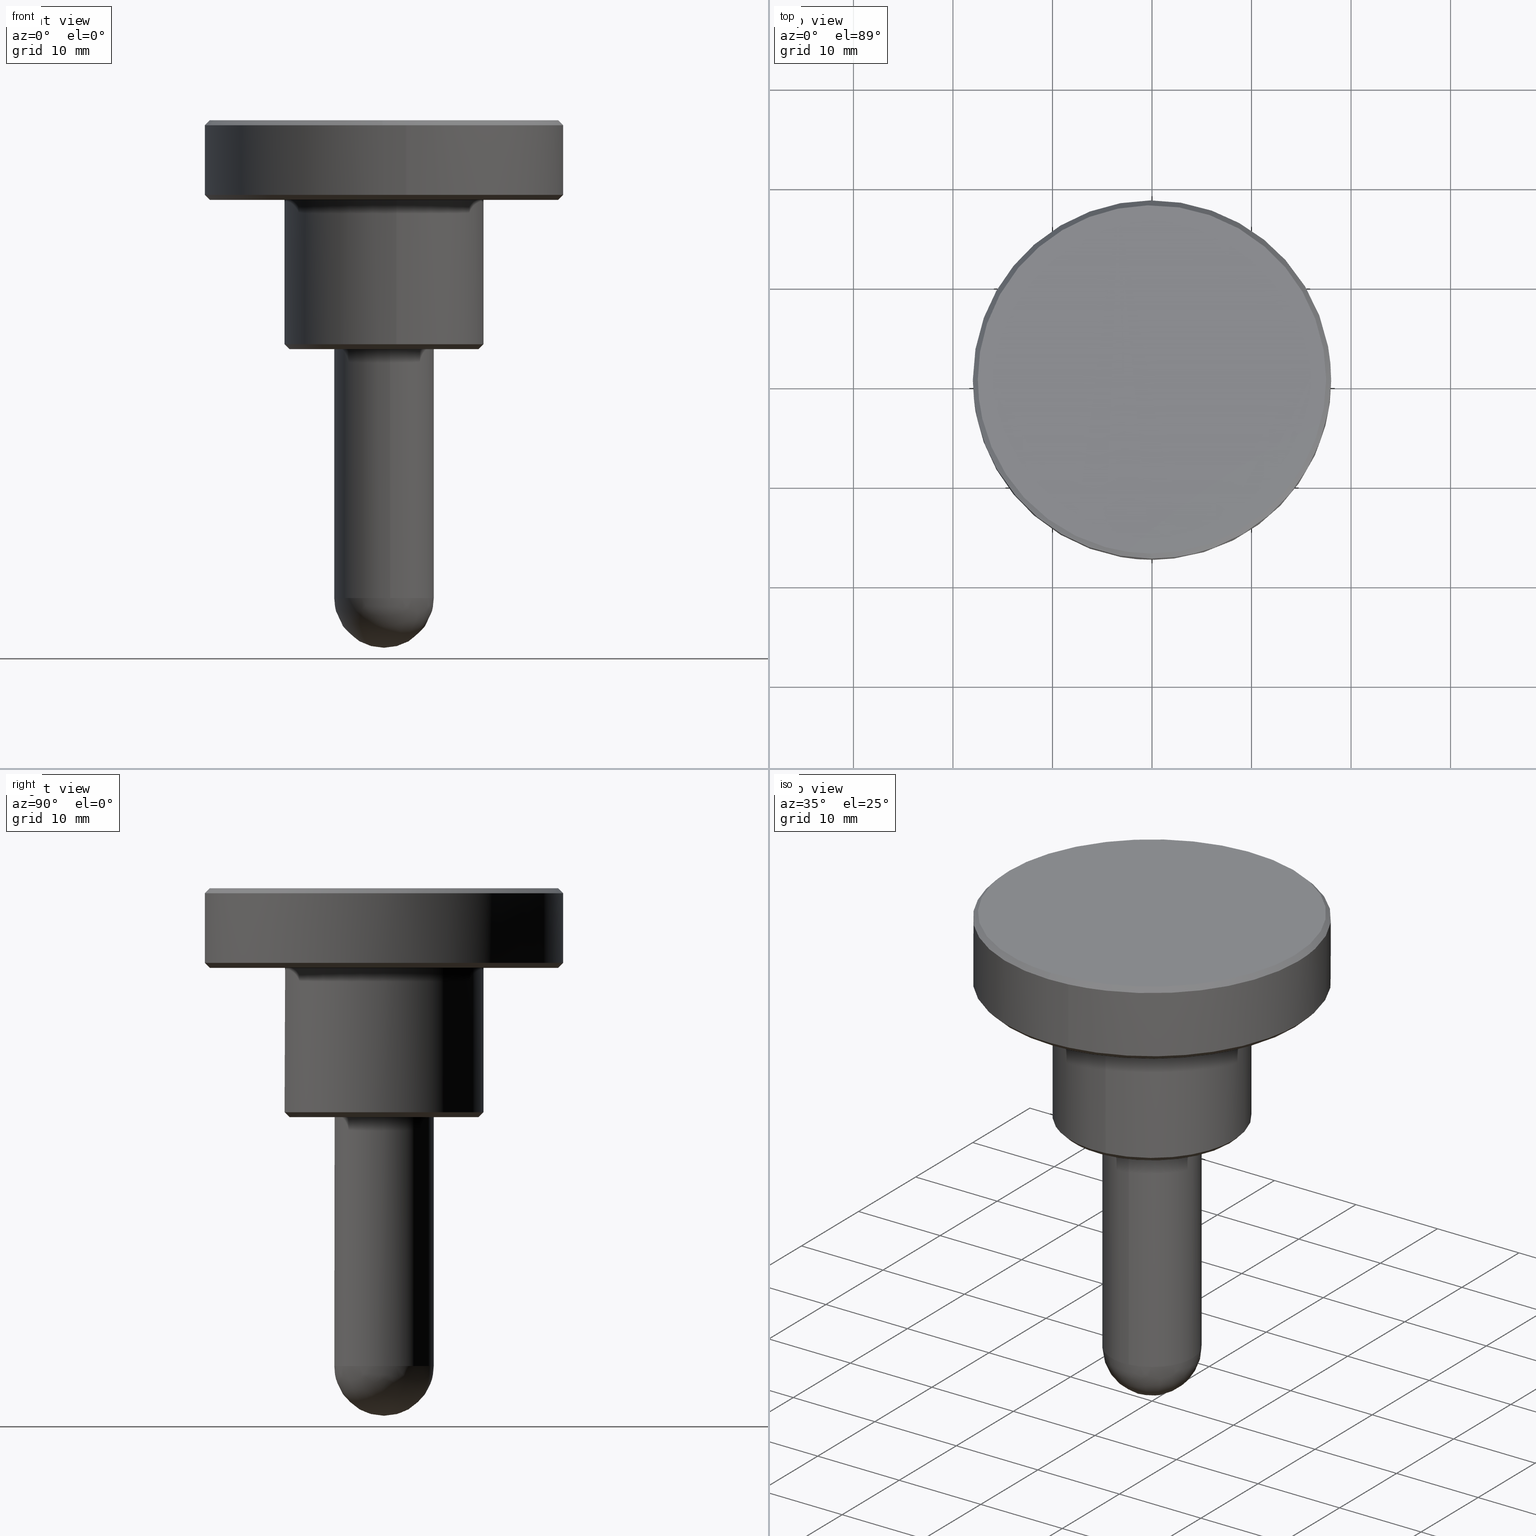
[diagram: canonical four-view strip — front | top / right | iso, engineering-drawing reading convention]
A machine part, canonical four-view strip (front | top / right | iso — engineering-drawing reading convention). The complete STEP part file that produces these views, byte-faithful:
ISO-10303-21;
HEADER;
/****************************************************************
 * Generated by software with PDE/Lib inside                    *
 * PDElib Version 4.4.1-0003, patched  Thursday August 19 11:58 *
 * International Technegroup Inc. (www.iti-oh.com)              *
 ****************************************************************/
FILE_DESCRIPTION((''),'2;1');
FILE_NAME('','2005-07-15T10:48:57',(''),(''),'','CADfix','');
FILE_SCHEMA(('AUTOMOTIVE_DESIGN'));
ENDSEC;
DATA;
#5=APPLICATION_CONTEXT('automotive design');
#6=APPLICATION_PROTOCOL_DEFINITION('Draft International Standard','automotive_design',1998,#5);
#7=PRODUCT_CONTEXT('None',#5,'mechanical');
#8=PRODUCT('knob','','None',(#7));
#9=PRODUCT_RELATED_PRODUCT_CATEGORY('part','description',(#8));
#10=PRODUCT_DEFINITION_FORMATION('None','None',#8);
#11=PRODUCT_DEFINITION_CONTEXT('part definition',#5,'design');
#12=PRODUCT_DEFINITION('None','None',#10,#11);
#18=(NAMED_UNIT(*)PLANE_ANGLE_UNIT()SI_UNIT($,.RADIAN.));
#19=DIMENSIONAL_EXPONENTS(0.0,0.0,0.0,0.0,0.0,0.0,0.0);
#20=PLANE_ANGLE_MEASURE_WITH_UNIT(PLANE_ANGLE_MEASURE(0.017453292500000),#18);
#24=(CONVERSION_BASED_UNIT('DEGREE',#20)NAMED_UNIT(#19)PLANE_ANGLE_UNIT());
#28=(NAMED_UNIT(*)SI_UNIT($,.STERADIAN.)SOLID_ANGLE_UNIT());
#32=(LENGTH_UNIT()NAMED_UNIT(*)SI_UNIT(.MILLI.,.METRE.));
#34=UNCERTAINTY_MEASURE_WITH_UNIT(LENGTH_MEASURE(0.001000000000000),#32,'DISTANCE_ACCURACY_VALUE','');
#36=(GEOMETRIC_REPRESENTATION_CONTEXT(3)GLOBAL_UNCERTAINTY_ASSIGNED_CONTEXT((#34))GLOBAL_UNIT_ASSIGNED_CONTEXT((#24,#28,#32))REPRESENTATION_CONTEXT('None','None'));
#37=AXIS2_PLACEMENT_3D('',#38,#39,#40);
#38=CARTESIAN_POINT('',(0.0,0.0,0.0));
#39=DIRECTION('',(0.0,0.0,1.0));
#40=DIRECTION('',(1.0,0.0,0.0));
#41=ADVANCED_BREP_SHAPE_REPRESENTATION('',(#37,#1160),#36);
#42=PRODUCT_DEFINITION_SHAPE('','',#12);
#43=SHAPE_DEFINITION_REPRESENTATION(#42,#41);
#44=CARTESIAN_POINT('',(-17.036639953710658,-3.945320688819989,23.012499999999999));
#45=CARTESIAN_POINT('',(-17.504948331500820,-1.923076656205386,23.012500000000003));
#46=CARTESIAN_POINT('',(-17.486834129584739,0.152605289527814,23.012499999999999));
#47=CARTESIAN_POINT('',(-17.334228840056934,17.639439419112552,23.012500000000006));
#48=CARTESIAN_POINT('',(0.152605289527814,17.486834129584739,23.012499999999999));
#49=CARTESIAN_POINT('',(17.639439419112552,17.334228840056934,23.012500000000006));
#50=CARTESIAN_POINT('',(17.486834129584739,-0.152605289527814,23.012499999999999));
#51=CARTESIAN_POINT('',(17.334228840056934,-17.639439419112552,23.012500000000006));
#52=CARTESIAN_POINT('',(-0.152605289527814,-17.486834129584739,23.012499999999999));
#53=CARTESIAN_POINT('',(-17.548408927302248,-4.063835415015588,22.487187499999994));
#54=CARTESIAN_POINT('',(-18.030784967405925,-1.980844559334066,22.487187499999990));
#55=CARTESIAN_POINT('',(-18.012126627294339,0.157189447706803,22.487187500000001));
#56=CARTESIAN_POINT('',(-17.854937179587541,18.169316075001138,22.487187500000005));
#57=CARTESIAN_POINT('',(0.157189447706803,18.012126627294339,22.487187500000001));
#58=CARTESIAN_POINT('',(18.169316075001138,17.854937179587541,22.487187500000005));
#59=CARTESIAN_POINT('',(18.012126627294339,-0.157189447706803,22.487187500000001));
#60=CARTESIAN_POINT('',(17.854937179587541,-18.169316075001138,22.487187500000005));
#61=CARTESIAN_POINT('',(-0.157189447706803,-18.012126627294339,22.487187500000001));
#69=(BOUNDED_SURFACE()B_SPLINE_SURFACE(2,1,((#44,#53),(#45,#54),(#46,#55),(#47,#56),(#48,#57),(#49,#58),(#50,#59),(#51,#60),(#52,#61)),.UNSPECIFIED.,.F.,.F.,.U.)B_SPLINE_SURFACE_WITH_KNOTS((3,2,2,2,3),(2,2),(0.0,4.775136789749517,34.619741725683980,64.464346661618450,94.308951597552920),(0.0,1.0),.UNSPECIFIED.)GEOMETRIC_REPRESENTATION_ITEM()RATIONAL_B_SPLINE_SURFACE(((0.921270302782944,0.921270302782944),(0.953137084989848,0.953137084989848),(1.0,1.0),(0.707106781186548,0.707106781186548),(1.0,1.0),(0.707106781186548,0.707106781186548),(1.0,1.0),(0.707106781186548,0.707106781186548),(1.0,1.0)))REPRESENTATION_ITEM('')SURFACE());
#70=CARTESIAN_POINT('',(-17.535926757209861,-4.060944811979751,22.499999999995168));
#71=VERTEX_POINT('',#70);
#72=CARTESIAN_POINT('',(-18.0,0.0,22.500000000000000));
#73=VERTEX_POINT('',#72);
#74=CARTESIAN_POINT('',(-17.535926757209864,-4.060944811979750,22.499999999995158));
#75=CARTESIAN_POINT('',(-17.999999999999996,-2.056988892277946,22.500000000000000));
#76=CARTESIAN_POINT('',(-18.0,0.0,22.500000000000000));
#84=(BOUNDED_CURVE()B_SPLINE_CURVE(2,(#74,#75,#76),.UNSPECIFIED.,.F.,.U.)B_SPLINE_CURVE_WITH_KNOTS((3,3),(0.961422971783845,1.0),.UNSPECIFIED.)CURVE()GEOMETRIC_REPRESENTATION_ITEM()RATIONAL_B_SPLINE_CURVE((0.923556557441548,0.954804200134052,1.0))REPRESENTATION_ITEM(''));
#85=EDGE_CURVE('',#71,#73,#84,.T.);
#86=ORIENTED_EDGE('',*,*,#85,.F.);
#87=CARTESIAN_POINT('',(-17.048817680623930,-3.948140789396533,22.999999999998550));
#88=VERTEX_POINT('',#87);
#89=CARTESIAN_POINT('',(-17.048817680623930,-3.948140789396533,22.999999999998550));
#90=CARTESIAN_POINT('',(-17.535926757209861,-4.060944811979751,22.499999999995168));
#91=QUASI_UNIFORM_CURVE('',1,(#89,#90),.UNSPECIFIED.,.F.,.U.);
#92=EDGE_CURVE('',#88,#71,#91,.T.);
#93=ORIENTED_EDGE('',*,*,#92,.F.);
#94=CARTESIAN_POINT('',(-17.500000000000000,0.0,23.0));
#95=VERTEX_POINT('',#94);
#96=CARTESIAN_POINT('',(-17.500000000000000,0.0,23.0));
#97=CARTESIAN_POINT('',(-17.500000000000000,-1.999850311908260,23.000000000000004));
#98=CARTESIAN_POINT('',(-17.048817680623930,-3.948140789396533,22.999999999998547));
#106=(BOUNDED_CURVE()B_SPLINE_CURVE(2,(#96,#97,#98),.UNSPECIFIED.,.F.,.U.)B_SPLINE_CURVE_WITH_KNOTS((3,3),(0.500000000000000,0.538577028215627),.UNSPECIFIED.)CURVE()GEOMETRIC_REPRESENTATION_ITEM()RATIONAL_B_SPLINE_CURVE((1.0,0.954804200134670,0.923556557442402))REPRESENTATION_ITEM(''));
#107=EDGE_CURVE('',#95,#88,#106,.T.);
#108=ORIENTED_EDGE('',*,*,#107,.F.);
#109=CARTESIAN_POINT('',(17.500000000000000,0.0,23.0));
#110=VERTEX_POINT('',#109);
#111=CARTESIAN_POINT('',(17.500000000000000,0.0,23.0));
#112=CARTESIAN_POINT('',(17.499999999999996,17.499999999999996,22.999999999999993));
#113=CARTESIAN_POINT('',(0.0,17.500000000000000,23.0));
#114=CARTESIAN_POINT('',(-17.499999999999996,17.499999999999996,22.999999999999993));
#115=CARTESIAN_POINT('',(-17.500000000000000,0.0,23.0));
#123=(BOUNDED_CURVE()B_SPLINE_CURVE(2,(#111,#112,#113,#114,#115),.UNSPECIFIED.,.F.,.U.)B_SPLINE_CURVE_WITH_KNOTS((3,2,3),(0.0,0.250000000000000,0.500000000000000),.UNSPECIFIED.)CURVE()GEOMETRIC_REPRESENTATION_ITEM()RATIONAL_B_SPLINE_CURVE((1.0,0.707106781186548,1.0,0.707106781186548,1.0))REPRESENTATION_ITEM(''));
#124=EDGE_CURVE('',#110,#95,#123,.T.);
#125=ORIENTED_EDGE('',*,*,#124,.F.);
#126=CARTESIAN_POINT('',(-0.152714371277731,-17.499333653630160,22.999999999992369));
#127=VERTEX_POINT('',#126);
#128=CARTESIAN_POINT('',(-0.152714371277731,-17.499333653630163,22.999999999992376));
#129=CARTESIAN_POINT('',(-0.076358639418401,-17.500000000000004,23.000000000000007));
#130=CARTESIAN_POINT('',(0.0,-17.500000000000000,23.0));
#131=CARTESIAN_POINT('',(17.499999999999996,-17.499999999999996,22.999999999999993));
#132=CARTESIAN_POINT('',(17.500000000000000,0.0,23.0));
#140=(BOUNDED_CURVE()B_SPLINE_CURVE(2,(#128,#129,#130,#131,#132),.UNSPECIFIED.,.F.,.U.)B_SPLINE_CURVE_WITH_KNOTS((3,2,3),(0.748460105663883,0.750000000000000,1.0),.UNSPECIFIED.)CURVE()GEOMETRIC_REPRESENTATION_ITEM()RATIONAL_B_SPLINE_CURVE((0.996414028097791,0.998195901565048,1.0,0.707106781186548,1.0))REPRESENTATION_ITEM(''));
#141=EDGE_CURVE('',#127,#110,#140,.T.);
#142=ORIENTED_EDGE('',*,*,#141,.F.);
#143=CARTESIAN_POINT('',(-0.157077639032708,-17.999314615162959,22.499999999991580));
#144=VERTEX_POINT('',#143);
#145=CARTESIAN_POINT('',(-0.152714371277731,-17.499333653630160,22.999999999992369));
#146=CARTESIAN_POINT('',(-0.157077639032708,-17.999314615162959,22.499999999991580));
#147=QUASI_UNIFORM_CURVE('',1,(#145,#146),.UNSPECIFIED.,.F.,.U.);
#148=EDGE_CURVE('',#127,#144,#147,.T.);
#149=ORIENTED_EDGE('',*,*,#148,.T.);
#150=CARTESIAN_POINT('',(2.234293266750887,-17.860793196217060,22.499999999999940));
#151=VERTEX_POINT('',#150);
#152=CARTESIAN_POINT('',(2.234293266750888,-17.860793196217056,22.499999999999936));
#153=CARTESIAN_POINT('',(1.121483247218361,-18.000000000000004,22.500000000000004));
#154=CARTESIAN_POINT('',(0.0,-18.0,22.500000000000000));
#155=CARTESIAN_POINT('',(-0.078540314834508,-18.0,22.500000000000000));
#156=CARTESIAN_POINT('',(-0.157077639032708,-17.999314615162966,22.499999999991577));
#164=(BOUNDED_CURVE()B_SPLINE_CURVE(2,(#152,#153,#154,#155,#156),.UNSPECIFIED.,.F.,.U.)B_SPLINE_CURVE_WITH_KNOTS((3,2,3),(0.728526172728731,0.750000000000000,0.751539894336198),.UNSPECIFIED.)CURVE()GEOMETRIC_REPRESENTATION_ITEM()RATIONAL_B_SPLINE_CURVE((0.954005627634095,0.974841846441095,1.0,0.998195901564953,0.996414028097603))REPRESENTATION_ITEM(''));
#165=EDGE_CURVE('',#151,#144,#164,.T.);
#166=ORIENTED_EDGE('',*,*,#165,.F.);
#167=CARTESIAN_POINT('',(18.0,0.0,22.500000000000000));
#168=VERTEX_POINT('',#167);
#169=CARTESIAN_POINT('',(18.0,0.0,22.500000000000000));
#170=CARTESIAN_POINT('',(18.000000000000004,-15.888584458753520,22.499999999999996));
#171=CARTESIAN_POINT('',(2.234293266750888,-17.860793196217056,22.499999999999936));
#179=(BOUNDED_CURVE()B_SPLINE_CURVE(2,(#169,#170,#171),.UNSPECIFIED.,.F.,.U.)B_SPLINE_CURVE_WITH_KNOTS((3,3),(0.500000000000000,0.728526172728731),.UNSPECIFIED.)CURVE()GEOMETRIC_REPRESENTATION_ITEM()RATIONAL_B_SPLINE_CURVE((1.0,0.732264934745452,0.954005627634095))REPRESENTATION_ITEM(''));
#180=EDGE_CURVE('',#168,#151,#179,.T.);
#181=ORIENTED_EDGE('',*,*,#180,.F.);
#182=CARTESIAN_POINT('',(-0.157060872765595,17.999314761455910,22.499999999999972));
#183=VERTEX_POINT('',#182);
#184=CARTESIAN_POINT('',(-0.157060872765595,17.999314761455917,22.499999999999968));
#185=CARTESIAN_POINT('',(-0.078531931191321,18.000000000000004,22.499999999999996));
#186=CARTESIAN_POINT('',(0.0,18.0,22.500000000000000));
#187=CARTESIAN_POINT('',(18.000000000000007,18.000000000000007,22.500000000000004));
#188=CARTESIAN_POINT('',(18.0,0.0,22.500000000000000));
#196=(BOUNDED_CURVE()B_SPLINE_CURVE(2,(#184,#185,#186,#187,#188),.UNSPECIFIED.,.F.,.U.)B_SPLINE_CURVE_WITH_KNOTS((3,2,3),(0.248460269740511,0.250000000000000,0.500000000000000),.UNSPECIFIED.)CURVE()GEOMETRIC_REPRESENTATION_ITEM()RATIONAL_B_SPLINE_CURVE((0.996414407817330,0.998196093792775,1.0,0.707106781186547,1.0))REPRESENTATION_ITEM(''));
#197=EDGE_CURVE('',#183,#168,#196,.T.);
#198=ORIENTED_EDGE('',*,*,#197,.F.);
#199=CARTESIAN_POINT('',(-18.0,0.0,22.500000000000000));
#200=CARTESIAN_POINT('',(-18.000000000000004,17.843618412510050,22.500000000000004));
#201=CARTESIAN_POINT('',(-0.157060872765595,17.999314761455917,22.499999999999968));
#209=(BOUNDED_CURVE()B_SPLINE_CURVE(2,(#199,#200,#201),.UNSPECIFIED.,.F.,.U.)B_SPLINE_CURVE_WITH_KNOTS((3,3),(0.0,0.248460269740511),.UNSPECIFIED.)CURVE()GEOMETRIC_REPRESENTATION_ITEM()RATIONAL_B_SPLINE_CURVE((1.0,0.708910687393773,0.996414407817330))REPRESENTATION_ITEM(''));
#210=EDGE_CURVE('',#73,#183,#209,.T.);
#211=ORIENTED_EDGE('',*,*,#210,.F.);
#212=EDGE_LOOP('',(#86,#93,#108,#125,#142,#149,#166,#181,#198,#211));
#213=FACE_OUTER_BOUND('',#212,.T.);
#214=ADVANCED_FACE('',(#213),#69,.T.);
#215=CARTESIAN_POINT('',(-0.152605289527814,-17.486834129584739,23.012499999999999));
#216=CARTESIAN_POINT('',(-13.928556243240688,-17.366613226919718,23.012500000000003));
#217=CARTESIAN_POINT('',(-17.036639953710658,-3.945320688819989,23.012499999999999));
#218=CARTESIAN_POINT('',(-0.157189447706803,-18.012126627294339,22.487187500000001));
#219=CARTESIAN_POINT('',(-14.346960514950569,-17.888294371209376,22.487187500000001));
#220=CARTESIAN_POINT('',(-17.548408927302248,-4.063835415015588,22.487187499999994));
#228=(BOUNDED_SURFACE()B_SPLINE_SURFACE(2,1,((#215,#218),(#216,#219),(#217,#220)),.UNSPECIFIED.,.F.,.F.,.U.)B_SPLINE_SURFACE_WITH_KNOTS((3,3),(2,2),(0.0,24.959837908595269),(0.0,1.0),.UNSPECIFIED.)GEOMETRIC_REPRESENTATION_ITEM()RATIONAL_B_SPLINE_SURFACE(((1.0,1.0),(0.753969696196700,0.753969696196700),(0.921270302782944,0.921270302782944)))REPRESENTATION_ITEM('')SURFACE());
#229=CARTESIAN_POINT('',(-0.157077639032708,-17.999314615162955,22.499999999991577));
#230=CARTESIAN_POINT('',(-14.336755532668068,-17.875570440763699,22.500000000000007));
#231=CARTESIAN_POINT('',(-17.535926757209861,-4.060944811979752,22.499999999995168));
#239=(BOUNDED_CURVE()B_SPLINE_CURVE(2,(#229,#230,#231),.UNSPECIFIED.,.F.,.U.)B_SPLINE_CURVE_WITH_KNOTS((3,3),(0.751539894336199,0.961422971783844),.UNSPECIFIED.)CURVE()GEOMETRIC_REPRESENTATION_ITEM()RATIONAL_B_SPLINE_CURVE((0.996414028097602,0.753549905437675,0.923556557441546))REPRESENTATION_ITEM(''));
#240=EDGE_CURVE('',#144,#71,#239,.T.);
#241=ORIENTED_EDGE('',*,*,#240,.F.);
#242=ORIENTED_EDGE('',*,*,#148,.F.);
#243=CARTESIAN_POINT('',(-17.048817680623930,-3.948140789396533,22.999999999998550));
#244=CARTESIAN_POINT('',(-13.938512323471615,-17.379026817415255,22.999999999999996));
#245=CARTESIAN_POINT('',(-0.152714371277731,-17.499333653630160,22.999999999992376));
#253=(BOUNDED_CURVE()B_SPLINE_CURVE(2,(#243,#244,#245),.UNSPECIFIED.,.F.,.U.)B_SPLINE_CURVE_WITH_KNOTS((3,3),(0.538577028215628,0.748460105663884),.UNSPECIFIED.)CURVE()GEOMETRIC_REPRESENTATION_ITEM()RATIONAL_B_SPLINE_CURVE((0.923556557442401,0.753549905436998,0.996414028097794))REPRESENTATION_ITEM(''));
#254=EDGE_CURVE('',#88,#127,#253,.T.);
#255=ORIENTED_EDGE('',*,*,#254,.F.);
#256=ORIENTED_EDGE('',*,*,#92,.T.);
#257=EDGE_LOOP('',(#241,#242,#255,#256));
#258=FACE_OUTER_BOUND('',#257,.T.);
#259=ADVANCED_FACE('',(#258),#228,.T.);
#260=CARTESIAN_POINT('',(14.319921146030703,-10.037555211378052,14.987499999999999));
#261=CARTESIAN_POINT('',(17.535725391208214,-5.449778383031156,14.987499999999997));
#262=CARTESIAN_POINT('',(17.486834129584690,0.152605289527813,14.987500000000001));
#263=CARTESIAN_POINT('',(17.334228840056877,17.639439419112509,14.987499999999997));
#264=CARTESIAN_POINT('',(-0.152605289527813,17.486834129584690,14.987500000000001));
#265=CARTESIAN_POINT('',(-17.639439419112509,17.334228840056877,14.987499999999997));
#266=CARTESIAN_POINT('',(-17.486834129584690,-0.152605289527813,14.987500000000001));
#267=CARTESIAN_POINT('',(-17.334228840056877,-17.639439419112509,14.987499999999997));
#268=CARTESIAN_POINT('',(0.152605289527813,-17.486834129584690,14.987500000000001));
#269=CARTESIAN_POINT('',(14.750081750864162,-10.339076482113015,15.512812500000001));
#270=CARTESIAN_POINT('',(18.062486548867700,-5.613485985995352,15.512812500000004));
#271=CARTESIAN_POINT('',(18.012126627294400,0.157189447706803,15.512812500000001));
#272=CARTESIAN_POINT('',(17.854937179587598,18.169316075001191,15.512812499999999));
#273=CARTESIAN_POINT('',(-0.157189447706803,18.012126627294400,15.512812500000001));
#274=CARTESIAN_POINT('',(-18.169316075001191,17.854937179587598,15.512812499999999));
#275=CARTESIAN_POINT('',(-18.012126627294400,-0.157189447706803,15.512812500000001));
#276=CARTESIAN_POINT('',(-17.854937179587598,-18.169316075001191,15.512812499999999));
#277=CARTESIAN_POINT('',(0.157189447706803,-18.012126627294400,15.512812500000001));
#285=(BOUNDED_SURFACE()B_SPLINE_SURFACE(2,1,((#260,#269),(#261,#270),(#262,#271),(#263,#272),(#264,#273),(#265,#274),(#266,#275),(#267,#276),(#268,#277)),.UNSPECIFIED.,.F.,.F.,.U.)B_SPLINE_SURFACE_WITH_KNOTS((3,2,2,2,3),(2,2),(0.0,11.937841974373820,41.782446910308373,71.627051846242921,101.471656782177500),(0.0,1.0),.UNSPECIFIED.)GEOMETRIC_REPRESENTATION_ITEM()RATIONAL_B_SPLINE_SURFACE(((0.859411254969543,0.859411254969543),(0.882842712474619,0.882842712474619),(1.0,1.0),(0.707106781186548,0.707106781186548),(1.0,1.0),(0.707106781186548,0.707106781186548),(1.0,1.0),(0.707106781186548,0.707106781186548),(1.0,1.0)))REPRESENTATION_ITEM('')SURFACE());
#286=CARTESIAN_POINT('',(17.500000000000000,0.0,15.0));
#287=VERTEX_POINT('',#286);
#288=CARTESIAN_POINT('',(14.330156972434990,-10.044730018541330,15.000000000000361));
#289=VERTEX_POINT('',#288);
#290=CARTESIAN_POINT('',(17.500000000000000,0.0,15.0));
#291=CARTESIAN_POINT('',(17.500000000000004,-5.522523042435791,14.999999999999993));
#292=CARTESIAN_POINT('',(14.330156972434999,-10.044730018541332,15.000000000000369));
#300=(BOUNDED_CURVE()B_SPLINE_CURVE(2,(#290,#291,#292),.UNSPECIFIED.,.F.,.U.)B_SPLINE_CURVE_WITH_KNOTS((3,3),(0.0,0.098673726203020),.UNSPECIFIED.)CURVE()GEOMETRIC_REPRESENTATION_ITEM()RATIONAL_B_SPLINE_CURVE((1.0,0.884396538880320,0.860049271925799))REPRESENTATION_ITEM(''));
#301=EDGE_CURVE('',#287,#289,#300,.T.);
#302=ORIENTED_EDGE('',*,*,#301,.F.);
#303=CARTESIAN_POINT('',(-17.500000000000000,0.0,15.0));
#304=VERTEX_POINT('',#303);
#305=CARTESIAN_POINT('',(-17.500000000000000,0.0,15.0));
#306=CARTESIAN_POINT('',(-17.499999999999996,17.499999999999996,14.999999999999995));
#307=CARTESIAN_POINT('',(0.0,17.500000000000000,15.0));
#308=CARTESIAN_POINT('',(17.499999999999996,17.499999999999996,14.999999999999995));
#309=CARTESIAN_POINT('',(17.500000000000000,0.0,15.0));
#317=(BOUNDED_CURVE()B_SPLINE_CURVE(2,(#305,#306,#307,#308,#309),.UNSPECIFIED.,.F.,.U.)B_SPLINE_CURVE_WITH_KNOTS((3,2,3),(0.500000000000000,0.750000000000000,1.0),.UNSPECIFIED.)CURVE()GEOMETRIC_REPRESENTATION_ITEM()RATIONAL_B_SPLINE_CURVE((1.0,0.707106781186548,1.0,0.707106781186548,1.0))REPRESENTATION_ITEM(''));
#318=EDGE_CURVE('',#304,#287,#317,.T.);
#319=ORIENTED_EDGE('',*,*,#318,.F.);
#320=CARTESIAN_POINT('',(0.152714371277728,-17.499333653630149,15.000000000007640));
#321=VERTEX_POINT('',#320);
#322=CARTESIAN_POINT('',(0.152714371277728,-17.499333653630146,15.000000000007640));
#323=CARTESIAN_POINT('',(0.076358639418399,-17.500000000000004,15.000000000000004));
#324=CARTESIAN_POINT('',(0.0,-17.500000000000000,15.0));
#325=CARTESIAN_POINT('',(-17.499999999999996,-17.499999999999996,14.999999999999995));
#326=CARTESIAN_POINT('',(-17.500000000000000,0.0,15.0));
#334=(BOUNDED_CURVE()B_SPLINE_CURVE(2,(#322,#323,#324,#325,#326),.UNSPECIFIED.,.F.,.U.)B_SPLINE_CURVE_WITH_KNOTS((3,2,3),(0.248460105663883,0.250000000000000,0.500000000000000),.UNSPECIFIED.)CURVE()GEOMETRIC_REPRESENTATION_ITEM()RATIONAL_B_SPLINE_CURVE((0.996414028097791,0.998195901565048,1.0,0.707106781186548,1.0))REPRESENTATION_ITEM(''));
#335=EDGE_CURVE('',#321,#304,#334,.T.);
#336=ORIENTED_EDGE('',*,*,#335,.F.);
#337=CARTESIAN_POINT('',(0.157077645517671,-17.999314617755640,15.500000002657560));
#338=VERTEX_POINT('',#337);
#339=CARTESIAN_POINT('',(0.152714371277728,-17.499333653630149,15.000000000007640));
#340=CARTESIAN_POINT('',(0.157077645517671,-17.999314617755640,15.500000002657560));
#341=QUASI_UNIFORM_CURVE('',1,(#339,#340),.UNSPECIFIED.,.F.,.U.);
#342=EDGE_CURVE('',#321,#338,#341,.T.);
#343=ORIENTED_EDGE('',*,*,#342,.T.);
#344=CARTESIAN_POINT('',(-18.0,0.0,15.500000000000000));
#345=VERTEX_POINT('',#344);
#346=CARTESIAN_POINT('',(-18.0,0.0,15.500000000000000));
#347=CARTESIAN_POINT('',(-18.000000000000007,-18.000000000000007,15.500000000000005));
#348=CARTESIAN_POINT('',(0.0,-18.0,15.500000000000000));
#349=CARTESIAN_POINT('',(0.078540321296755,-18.000000000000004,15.500000000000005));
#350=CARTESIAN_POINT('',(0.157077645517671,-17.999314617755633,15.500000002657558));
#358=(BOUNDED_CURVE()B_SPLINE_CURVE(2,(#346,#347,#348,#349,#350),.UNSPECIFIED.,.F.,.U.)B_SPLINE_CURVE_WITH_KNOTS((3,2,3),(0.0,0.250000000000000,0.251539894462671),.UNSPECIFIED.)CURVE()GEOMETRIC_REPRESENTATION_ITEM()RATIONAL_B_SPLINE_CURVE((1.0,0.707106781186547,1.0,0.998195901416781,0.996414027804909))REPRESENTATION_ITEM(''));
#359=EDGE_CURVE('',#345,#338,#358,.T.);
#360=ORIENTED_EDGE('',*,*,#359,.F.);
#361=CARTESIAN_POINT('',(-0.157060678357192,17.999314763152132,15.500000000000000));
#362=VERTEX_POINT('',#361);
#363=CARTESIAN_POINT('',(-0.157060678357192,17.999314763152125,15.500000000000002));
#364=CARTESIAN_POINT('',(-17.999999999999996,17.843618605244128,15.500000000000007));
#365=CARTESIAN_POINT('',(-18.0,0.0,15.500000000000000));
#373=(BOUNDED_CURVE()B_SPLINE_CURVE(2,(#363,#364,#365),.UNSPECIFIED.,.F.,.U.)B_SPLINE_CURVE_WITH_KNOTS((3,3),(0.751539728356992,1.0),.UNSPECIFIED.)CURVE()GEOMETRIC_REPRESENTATION_ITEM()RATIONAL_B_SPLINE_CURVE((0.996414412220248,0.708910685164858,1.0))REPRESENTATION_ITEM(''));
#374=EDGE_CURVE('',#362,#345,#373,.T.);
#375=ORIENTED_EDGE('',*,*,#374,.F.);
#376=CARTESIAN_POINT('',(18.0,0.0,15.500000000000000));
#377=VERTEX_POINT('',#376);
#378=CARTESIAN_POINT('',(18.0,0.0,15.500000000000000));
#379=CARTESIAN_POINT('',(18.000000000000007,18.000000000000007,15.500000000000005));
#380=CARTESIAN_POINT('',(0.0,18.0,15.500000000000000));
#381=CARTESIAN_POINT('',(-0.078531833981571,17.999999999999996,15.500000000000000));
#382=CARTESIAN_POINT('',(-0.157060678357192,17.999314763152125,15.500000000000002));
#390=(BOUNDED_CURVE()B_SPLINE_CURVE(2,(#378,#379,#380,#381,#382),.UNSPECIFIED.,.F.,.U.)B_SPLINE_CURVE_WITH_KNOTS((3,2,3),(0.500000000000000,0.750000000000000,0.751539728356992),.UNSPECIFIED.)CURVE()GEOMETRIC_REPRESENTATION_ITEM()RATIONAL_B_SPLINE_CURVE((1.0,0.707106781186547,1.0,0.998196096021689,0.996414412220248))REPRESENTATION_ITEM(''));
#391=EDGE_CURVE('',#377,#362,#390,.T.);
#392=ORIENTED_EDGE('',*,*,#391,.F.);
#393=CARTESIAN_POINT('',(14.739590028792740,-10.331722304781540,15.500000000000171));
#394=VERTEX_POINT('',#393);
#395=CARTESIAN_POINT('',(14.739590028792740,-10.331722304781543,15.500000000000162));
#396=CARTESIAN_POINT('',(18.000000000000007,-5.680309415071812,15.500000000000000));
#397=CARTESIAN_POINT('',(18.0,0.0,15.500000000000000));
#405=(BOUNDED_CURVE()B_SPLINE_CURVE(2,(#395,#396,#397),.UNSPECIFIED.,.F.,.U.)B_SPLINE_CURVE_WITH_KNOTS((3,3),(0.401326273797056,0.500000000000000),.UNSPECIFIED.)CURVE()GEOMETRIC_REPRESENTATION_ITEM()RATIONAL_B_SPLINE_CURVE((0.860049271925837,0.884396538880410,1.0))REPRESENTATION_ITEM(''));
#406=EDGE_CURVE('',#394,#377,#405,.T.);
#407=ORIENTED_EDGE('',*,*,#406,.F.);
#408=CARTESIAN_POINT('',(14.330156972434990,-10.044730018541330,15.000000000000361));
#409=CARTESIAN_POINT('',(14.739590028792740,-10.331722304781540,15.500000000000171));
#410=QUASI_UNIFORM_CURVE('',1,(#408,#409),.UNSPECIFIED.,.F.,.U.);
#411=EDGE_CURVE('',#289,#394,#410,.T.);
#412=ORIENTED_EDGE('',*,*,#411,.F.);
#413=EDGE_LOOP('',(#302,#319,#336,#343,#360,#375,#392,#407,#412));
#414=FACE_OUTER_BOUND('',#413,.T.);
#415=ADVANCED_FACE('',(#414),#285,.T.);
#416=CARTESIAN_POINT('',(0.152605289527813,-17.486834129584690,14.987500000000001));
#417=CARTESIAN_POINT('',(9.153404521625713,-17.408285344675011,14.987500000000002));
#418=CARTESIAN_POINT('',(14.319921146030703,-10.037555211378052,14.987499999999999));
#419=CARTESIAN_POINT('',(0.157189447706803,-18.012126627294400,15.512812500000001));
#420=CARTESIAN_POINT('',(9.428366512348630,-17.931218290786557,15.512812500000008));
#421=CARTESIAN_POINT('',(14.750081750864162,-10.339076482113015,15.512812500000001));
#429=(BOUNDED_SURFACE()B_SPLINE_SURFACE(2,1,((#416,#419),(#417,#420),(#418,#421)),.UNSPECIFIED.,.F.,.F.,.U.)B_SPLINE_SURFACE_WITH_KNOTS((3,3),(2,2),(0.0,17.784708021925880),(0.0,1.0),.UNSPECIFIED.)GEOMETRIC_REPRESENTATION_ITEM()RATIONAL_B_SPLINE_SURFACE(((1.0,1.0),(0.824264068711928,0.824264068711928),(0.859411254969543,0.859411254969543)))REPRESENTATION_ITEM('')SURFACE());
#430=CARTESIAN_POINT('',(14.330156972434999,-10.044730018541332,15.000000000000369));
#431=CARTESIAN_POINT('',(9.159947341185077,-17.420728722275783,15.000000000000002));
#432=CARTESIAN_POINT('',(0.152714371277728,-17.499333653630153,15.000000000007638));
#440=(BOUNDED_CURVE()B_SPLINE_CURVE(2,(#430,#431,#432),.UNSPECIFIED.,.F.,.U.)B_SPLINE_CURVE_WITH_KNOTS((3,3),(0.098673726203020,0.248460105663883),.UNSPECIFIED.)CURVE()GEOMETRIC_REPRESENTATION_ITEM()RATIONAL_B_SPLINE_CURVE((0.860049271925799,0.823090203821069,0.996414028097791))REPRESENTATION_ITEM(''));
#441=EDGE_CURVE('',#289,#321,#440,.T.);
#442=ORIENTED_EDGE('',*,*,#441,.F.);
#443=ORIENTED_EDGE('',*,*,#411,.T.);
#444=CARTESIAN_POINT('',(2.234295641323565,-17.860792899171379,15.500000000000000));
#445=VERTEX_POINT('',#444);
#446=CARTESIAN_POINT('',(2.234295641323565,-17.860792899171390,15.500000000000007));
#447=CARTESIAN_POINT('',(10.156769800932420,-16.869731103471491,15.500000000000004));
#448=CARTESIAN_POINT('',(14.739590028792740,-10.331722304781543,15.500000000000162));
#456=(BOUNDED_CURVE()B_SPLINE_CURVE(2,(#446,#447,#448),.UNSPECIFIED.,.F.,.U.)B_SPLINE_CURVE_WITH_KNOTS((3,3),(0.271473849692561,0.401326273797057),.UNSPECIFIED.)CURVE()GEOMETRIC_REPRESENTATION_ITEM()RATIONAL_B_SPLINE_CURVE((0.954005584122997,0.828008811349044,0.860049271925837))REPRESENTATION_ITEM(''));
#457=EDGE_CURVE('',#445,#394,#456,.T.);
#458=ORIENTED_EDGE('',*,*,#457,.F.);
#459=CARTESIAN_POINT('',(0.157077645517671,-17.999314617755640,15.500000002657565));
#460=CARTESIAN_POINT('',(1.199698622931773,-17.990215798916342,15.500000000000000));
#461=CARTESIAN_POINT('',(2.234295641323565,-17.860792899171390,15.500000000000007));
#469=(BOUNDED_CURVE()B_SPLINE_CURVE(2,(#459,#460,#461),.UNSPECIFIED.,.F.,.U.)B_SPLINE_CURVE_WITH_KNOTS((3,3),(0.251539894462671,0.271473849692561),.UNSPECIFIED.)CURVE()GEOMETRIC_REPRESENTATION_ITEM()RATIONAL_B_SPLINE_CURVE((0.996414027804909,0.973347649124152,0.954005584122997))REPRESENTATION_ITEM(''));
#470=EDGE_CURVE('',#338,#445,#469,.T.);
#471=ORIENTED_EDGE('',*,*,#470,.F.);
#472=ORIENTED_EDGE('',*,*,#342,.F.);
#473=EDGE_LOOP('',(#442,#443,#458,#471,#472));
#474=FACE_OUTER_BOUND('',#473,.T.);
#475=ADVANCED_FACE('',(#474),#429,.T.);
#476=CARTESIAN_POINT('',(-3.834993910984958,-8.677872893325199,-0.012499999999999));
#477=CARTESIAN_POINT('',(-1.963370728928781,-9.504995345460285,-0.012499999999999));
#478=CARTESIAN_POINT('',(0.082793005540822,-9.487138745071324,-0.012499999999999));
#479=CARTESIAN_POINT('',(9.569931750612147,-9.404345739530502,-0.012499999999999));
#480=CARTESIAN_POINT('',(9.487138745071324,0.082793005540822,-0.012499999999999));
#481=CARTESIAN_POINT('',(9.404345739530502,9.569931750612147,-0.012499999999999));
#482=CARTESIAN_POINT('',(-0.082793005540822,9.487138745071324,-0.012499999999999));
#483=CARTESIAN_POINT('',(-4.047333330101089,-9.158357225791594,0.512812499999944));
#484=CARTESIAN_POINT('',(-2.072080419157019,-10.031276543606490,0.512812499999944));
#485=CARTESIAN_POINT('',(0.087377163719812,-10.012431242780970,0.512812499999944));
#486=CARTESIAN_POINT('',(10.099808406500783,-9.925054079061161,0.512812499999944));
#487=CARTESIAN_POINT('',(10.012431242780970,0.087377163719812,0.512812499999944));
#488=CARTESIAN_POINT('',(9.925054079061161,10.099808406500783,0.512812499999944));
#489=CARTESIAN_POINT('',(-0.087377163719812,10.012431242780970,0.512812499999944));
#497=(BOUNDED_SURFACE()B_SPLINE_SURFACE(2,1,((#476,#483),(#477,#484),(#478,#485),(#479,#486),(#480,#487),(#481,#488),(#482,#489)),.UNSPECIFIED.,.F.,.F.,.U.)B_SPLINE_SURFACE_WITH_KNOTS((3,2,2,3),(2,2),(0.0,4.645135863198720,21.234906803194139,37.824677743189568),(0.0,1.0),.UNSPECIFIED.)GEOMETRIC_REPRESENTATION_ITEM()RATIONAL_B_SPLINE_SURFACE(((0.881905454174416,0.881905454174416),(0.917989898732233,0.917989898732233),(1.0,1.0),(0.707106781186548,0.707106781186548),(1.0,1.0),(0.707106781186548,0.707106781186548),(1.0,1.0)))REPRESENTATION_ITEM('')SURFACE());
#498=CARTESIAN_POINT('',(-4.042154319927587,-9.146638095714618,0.500000000004304));
#499=VERTEX_POINT('',#498);
#500=CARTESIAN_POINT('',(1.241272380013459,-9.922663094076931,0.499999999999901));
#501=VERTEX_POINT('',#500);
#502=CARTESIAN_POINT('',(-4.042154319927588,-9.146638095714618,0.500000000004304));
#503=CARTESIAN_POINT('',(-2.111156172572590,-10.0,0.499999999999945));
#504=CARTESIAN_POINT('',(0.0,-10.0,0.499999999999945));
#505=CARTESIAN_POINT('',(0.623045410220624,-10.000000000000002,0.499999999999945));
#506=CARTESIAN_POINT('',(1.241272380013459,-9.922663094076931,0.499999999999901));
#514=(BOUNDED_CURVE()B_SPLINE_CURVE(2,(#502,#503,#504,#505,#506),.UNSPECIFIED.,.F.,.U.)B_SPLINE_CURVE_WITH_KNOTS((3,2,3),(0.181361578458326,0.250000000000000,0.271473799107639),.UNSPECIFIED.)CURVE()GEOMETRIC_REPRESENTATION_ITEM()RATIONAL_B_SPLINE_CURVE((0.883326595750187,0.919585087121538,1.0,0.974841879436841,0.954005682288873))REPRESENTATION_ITEM(''));
#515=EDGE_CURVE('',#499,#501,#514,.T.);
#516=ORIENTED_EDGE('',*,*,#515,.F.);
#517=CARTESIAN_POINT('',(-3.840046603896163,-8.689306190940943,1.003257E-012));
#518=VERTEX_POINT('',#517);
#519=CARTESIAN_POINT('',(-3.840046603896163,-8.689306190940943,1.003257E-012));
#520=CARTESIAN_POINT('',(-4.042154319927587,-9.146638095714618,0.500000000004304));
#521=QUASI_UNIFORM_CURVE('',1,(#519,#520),.UNSPECIFIED.,.F.,.U.);
#522=EDGE_CURVE('',#518,#499,#521,.T.);
#523=ORIENTED_EDGE('',*,*,#522,.F.);
#524=CARTESIAN_POINT('',(9.500000000000000,0.0,0.0));
#525=VERTEX_POINT('',#524);
#526=CARTESIAN_POINT('',(9.500000000000000,0.0,0.0));
#527=CARTESIAN_POINT('',(9.500000000000000,-9.500000000000000,0.0));
#528=CARTESIAN_POINT('',(0.0,-9.500000000000000,0.0));
#529=CARTESIAN_POINT('',(-2.005598363905397,-9.499999999999998,0.0));
#530=CARTESIAN_POINT('',(-3.840046603896162,-8.689306190940943,1.003257E-012));
#538=(BOUNDED_CURVE()B_SPLINE_CURVE(2,(#526,#527,#528,#529,#530),.UNSPECIFIED.,.F.,.U.)B_SPLINE_CURVE_WITH_KNOTS((3,2,3),(0.500000000000000,0.750000000000000,0.818638421540460),.UNSPECIFIED.)CURVE()GEOMETRIC_REPRESENTATION_ITEM()RATIONAL_B_SPLINE_CURVE((1.0,0.707106781186548,1.0,0.919585087122960,0.883326595751469))REPRESENTATION_ITEM(''));
#539=EDGE_CURVE('',#525,#518,#538,.T.);
#540=ORIENTED_EDGE('',*,*,#539,.F.);
#541=CARTESIAN_POINT('',(-0.082902087239136,9.499638269110207,6.218932E-013));
#542=VERTEX_POINT('',#541);
#543=CARTESIAN_POINT('',(-0.082902087239136,9.499638269110207,6.218932E-013));
#544=CARTESIAN_POINT('',(-0.041451832801244,9.500000000000002,0.0));
#545=CARTESIAN_POINT('',(0.0,9.500000000000000,0.0));
#546=CARTESIAN_POINT('',(9.500000000000000,9.500000000000000,0.0));
#547=CARTESIAN_POINT('',(9.500000000000000,0.0,0.0));
#555=(BOUNDED_CURVE()B_SPLINE_CURVE(2,(#543,#544,#545,#546,#547),.UNSPECIFIED.,.F.,.U.)B_SPLINE_CURVE_WITH_KNOTS((3,2,3),(0.248460105664843,0.250000000000000,0.500000000000000),.UNSPECIFIED.)CURVE()GEOMETRIC_REPRESENTATION_ITEM()RATIONAL_B_SPLINE_CURVE((0.996414028100013,0.998195901566173,1.0,0.707106781186548,1.0))REPRESENTATION_ITEM(''));
#556=EDGE_CURVE('',#542,#525,#555,.T.);
#557=ORIENTED_EDGE('',*,*,#556,.F.);
#558=CARTESIAN_POINT('',(-0.087263212267545,9.999619249339538,0.499999999999496));
#559=VERTEX_POINT('',#558);
#560=CARTESIAN_POINT('',(-0.082902087239136,9.499638269110207,6.218932E-013));
#561=CARTESIAN_POINT('',(-0.087263212267545,9.999619249339538,0.499999999999496));
#562=QUASI_UNIFORM_CURVE('',1,(#560,#561),.UNSPECIFIED.,.F.,.U.);
#563=EDGE_CURVE('',#542,#559,#562,.T.);
#564=ORIENTED_EDGE('',*,*,#563,.T.);
#565=CARTESIAN_POINT('',(10.0,0.0,0.499999999999945));
#566=VERTEX_POINT('',#565);
#567=CARTESIAN_POINT('',(10.0,0.0,0.499999999999945));
#568=CARTESIAN_POINT('',(10.000000000000002,10.000000000000002,0.499999999999945));
#569=CARTESIAN_POINT('',(0.0,10.0,0.499999999999945));
#570=CARTESIAN_POINT('',(-0.043632436787731,10.0,0.499999999999945));
#571=CARTESIAN_POINT('',(-0.087263212267545,9.999619249339538,0.499999999999496));
#579=(BOUNDED_CURVE()B_SPLINE_CURVE(2,(#567,#568,#569,#570,#571),.UNSPECIFIED.,.F.,.U.)B_SPLINE_CURVE_WITH_KNOTS((3,2,3),(0.500000000000000,0.750000000000000,0.751539856591150),.UNSPECIFIED.)CURVE()GEOMETRIC_REPRESENTATION_ITEM()RATIONAL_B_SPLINE_CURVE((1.0,0.707106781186548,1.0,0.998195945786028,0.996414115450233))REPRESENTATION_ITEM(''));
#580=EDGE_CURVE('',#566,#559,#579,.T.);
#581=ORIENTED_EDGE('',*,*,#580,.F.);
#582=CARTESIAN_POINT('',(1.241272380013459,-9.922663094076931,0.499999999999901));
#583=CARTESIAN_POINT('',(10.0,-8.826992851558027,0.499999999999945));
#584=CARTESIAN_POINT('',(10.0,0.0,0.499999999999945));
#592=(BOUNDED_CURVE()B_SPLINE_CURVE(2,(#582,#583,#584),.UNSPECIFIED.,.F.,.U.)B_SPLINE_CURVE_WITH_KNOTS((3,3),(0.271473799107639,0.500000000000000),.UNSPECIFIED.)CURVE()GEOMETRIC_REPRESENTATION_ITEM()RATIONAL_B_SPLINE_CURVE((0.954005682288873,0.732264901749707,1.0))REPRESENTATION_ITEM(''));
#593=EDGE_CURVE('',#501,#566,#592,.T.);
#594=ORIENTED_EDGE('',*,*,#593,.F.);
#595=EDGE_LOOP('',(#516,#523,#540,#557,#564,#581,#594));
#596=FACE_OUTER_BOUND('',#595,.T.);
#597=ADVANCED_FACE('',(#596),#497,.T.);
#598=CARTESIAN_POINT('',(-0.082793005540822,9.487138745071324,-0.012499999999999));
#599=CARTESIAN_POINT('',(-9.569931750612147,9.404345739530502,-0.012499999999999));
#600=CARTESIAN_POINT('',(-9.487138745071324,-0.082793005540822,-0.012499999999999));
#601=CARTESIAN_POINT('',(-9.433722935820269,-6.203638483183840,-0.012499999999999));
#602=CARTESIAN_POINT('',(-3.834993910984958,-8.677872893325199,-0.012499999999999));
#603=CARTESIAN_POINT('',(-0.087377163719812,10.012431242780970,0.512812499999944));
#604=CARTESIAN_POINT('',(-10.099808406500783,9.925054079061161,0.512812499999944));
#605=CARTESIAN_POINT('',(-10.012431242780970,-0.087377163719812,0.512812499999944));
#606=CARTESIAN_POINT('',(-9.956057858584234,-6.547127162045237,0.512812499999944));
#607=CARTESIAN_POINT('',(-4.047333330101089,-9.158357225791594,0.512812499999944));
#615=(BOUNDED_SURFACE()B_SPLINE_SURFACE(2,1,((#598,#603),(#599,#604),(#600,#605),(#601,#606),(#602,#607)),.UNSPECIFIED.,.F.,.F.,.U.)B_SPLINE_SURFACE_WITH_KNOTS((3,2,3),(2,2),(0.0,16.589770939995429,28.534406016792129),(0.0,1.0),.UNSPECIFIED.)GEOMETRIC_REPRESENTATION_ITEM()RATIONAL_B_SPLINE_SURFACE(((1.0,1.0),(0.707106781186548,0.707106781186548),(1.0,1.0),(0.789116882454314,0.789116882454314),(0.881905454174416,0.881905454174416)))REPRESENTATION_ITEM('')SURFACE());
#616=CARTESIAN_POINT('',(-10.0,0.0,0.499999999999945));
#617=VERTEX_POINT('',#616);
#618=CARTESIAN_POINT('',(-10.0,0.0,0.499999999999945));
#619=CARTESIAN_POINT('',(-10.0,-6.513700025842954,0.499999999999945));
#620=CARTESIAN_POINT('',(-4.042154319927588,-9.146638095714618,0.500000000004304));
#628=(BOUNDED_CURVE()B_SPLINE_CURVE(2,(#618,#619,#620),.UNSPECIFIED.,.F.,.U.)B_SPLINE_CURVE_WITH_KNOTS((3,3),(0.0,0.181361578458326),.UNSPECIFIED.)CURVE()GEOMETRIC_REPRESENTATION_ITEM()RATIONAL_B_SPLINE_CURVE((1.0,0.787521694065009,0.883326595750187))REPRESENTATION_ITEM(''));
#629=EDGE_CURVE('',#617,#499,#628,.T.);
#630=ORIENTED_EDGE('',*,*,#629,.F.);
#631=CARTESIAN_POINT('',(-0.087263212267545,9.999619249339538,0.499999999999496));
#632=CARTESIAN_POINT('',(-9.999999999999998,9.913114230210349,0.499999999999945));
#633=CARTESIAN_POINT('',(-10.0,0.0,0.499999999999945));
#641=(BOUNDED_CURVE()B_SPLINE_CURVE(2,(#631,#632,#633),.UNSPECIFIED.,.F.,.U.)B_SPLINE_CURVE_WITH_KNOTS((3,3),(0.751539856591150,1.0),.UNSPECIFIED.)CURVE()GEOMETRIC_REPRESENTATION_ITEM()RATIONAL_B_SPLINE_CURVE((0.996414115450233,0.708910835400520,1.0))REPRESENTATION_ITEM(''));
#642=EDGE_CURVE('',#559,#617,#641,.T.);
#643=ORIENTED_EDGE('',*,*,#642,.F.);
#644=ORIENTED_EDGE('',*,*,#563,.F.);
#645=CARTESIAN_POINT('',(-9.500000000000000,0.0,0.0));
#646=VERTEX_POINT('',#645);
#647=CARTESIAN_POINT('',(-9.500000000000000,0.0,0.0));
#648=CARTESIAN_POINT('',(-9.500000000000000,9.417456500643221,0.0));
#649=CARTESIAN_POINT('',(-0.082902087239136,9.499638269110207,6.218932E-013));
#657=(BOUNDED_CURVE()B_SPLINE_CURVE(2,(#647,#648,#649),.UNSPECIFIED.,.F.,.U.)B_SPLINE_CURVE_WITH_KNOTS((3,3),(0.0,0.248460105664843),.UNSPECIFIED.)CURVE()GEOMETRIC_REPRESENTATION_ITEM()RATIONAL_B_SPLINE_CURVE((1.0,0.708910879620374,0.996414028100013))REPRESENTATION_ITEM(''));
#658=EDGE_CURVE('',#646,#542,#657,.T.);
#659=ORIENTED_EDGE('',*,*,#658,.F.);
#660=CARTESIAN_POINT('',(-3.840046603896163,-8.689306190940943,1.003257E-012));
#661=CARTESIAN_POINT('',(-9.500000000000000,-6.188015024603399,0.0));
#662=CARTESIAN_POINT('',(-9.500000000000000,0.0,0.0));
#670=(BOUNDED_CURVE()B_SPLINE_CURVE(2,(#660,#661,#662),.UNSPECIFIED.,.F.,.U.)B_SPLINE_CURVE_WITH_KNOTS((3,3),(0.818638421540460,1.0),.UNSPECIFIED.)CURVE()GEOMETRIC_REPRESENTATION_ITEM()RATIONAL_B_SPLINE_CURVE((0.883326595751470,0.787521694063587,1.0))REPRESENTATION_ITEM(''));
#671=EDGE_CURVE('',#518,#646,#670,.T.);
#672=ORIENTED_EDGE('',*,*,#671,.F.);
#673=ORIENTED_EDGE('',*,*,#522,.T.);
#674=EDGE_LOOP('',(#630,#643,#644,#659,#672,#673));
#675=FACE_OUTER_BOUND('',#674,.T.);
#676=ADVANCED_FACE('',(#675),#615,.T.);
#677=CARTESIAN_POINT('',(0.620640010399146,-4.961331069127693,-25.625000000000004));
#678=CARTESIAN_POINT('',(5.038664152512223,-4.408656290666105,-25.625000000000000));
#679=CARTESIAN_POINT('',(4.999809615320855,0.043632677491869,-25.625000000000000));
#680=CARTESIAN_POINT('',(4.956176937828985,5.043442292812725,-25.625000000000014));
#681=CARTESIAN_POINT('',(-0.043632677491869,4.999809615320855,-25.625000000000000));
#682=CARTESIAN_POINT('',(0.620640010399146,-4.961331069127693,0.640625000000004));
#683=CARTESIAN_POINT('',(5.038664152512223,-4.408656290666105,0.640625000000004));
#684=CARTESIAN_POINT('',(4.999809615320855,0.043632677491869,0.640625000000004));
#685=CARTESIAN_POINT('',(4.956176937828985,5.043442292812725,0.640625000000004));
#686=CARTESIAN_POINT('',(-0.043632677491869,4.999809615320855,0.640625000000004));
#694=(BOUNDED_SURFACE()B_SPLINE_SURFACE(2,1,((#677,#682),(#678,#683),(#679,#684),(#680,#685),(#681,#686)),.UNSPECIFIED.,.F.,.F.,.U.)B_SPLINE_SURFACE_WITH_KNOTS((3,2,3),(2,2),(0.0,7.621529547664946,15.905800795126851),(0.0,26.265625000000011),.UNSPECIFIED.)GEOMETRIC_REPRESENTATION_ITEM()RATIONAL_B_SPLINE_SURFACE(((0.956886118190660,0.956886118190660),(0.730538238691624,0.730538238691624),(1.0,1.0),(0.707106781186548,0.707106781186548),(1.0,1.0)))REPRESENTATION_ITEM('')SURFACE());
#695=CARTESIAN_POINT('',(0.620640010450139,-4.961331069121314,-25.0));
#696=VERTEX_POINT('',#695);
#697=CARTESIAN_POINT('',(5.0,0.0,-25.0));
#698=VERTEX_POINT('',#697);
#699=CARTESIAN_POINT('',(0.620640010450139,-4.961331069121314,-24.999999999999996));
#700=CARTESIAN_POINT('',(5.000000000000001,-4.413493000659713,-25.0));
#701=CARTESIAN_POINT('',(5.0,0.0,-25.0));
#709=(BOUNDED_CURVE()B_SPLINE_CURVE(2,(#699,#700,#701),.UNSPECIFIED.,.F.,.U.)B_SPLINE_CURVE_WITH_KNOTS((3,3),(0.771473928974168,1.0),.UNSPECIFIED.)CURVE()GEOMETRIC_REPRESENTATION_ITEM()RATIONAL_B_SPLINE_CURVE((0.954005430267991,0.732265053897809,1.0))REPRESENTATION_ITEM(''));
#710=EDGE_CURVE('',#696,#698,#709,.T.);
#711=ORIENTED_EDGE('',*,*,#710,.T.);
#712=CARTESIAN_POINT('',(-0.043632677532883,4.999809615320498,-25.0));
#713=VERTEX_POINT('',#712);
#714=CARTESIAN_POINT('',(5.0,0.0,-25.0));
#715=CARTESIAN_POINT('',(5.000000000000001,5.000000000000001,-25.0));
#716=CARTESIAN_POINT('',(0.0,5.0,-25.0));
#717=CARTESIAN_POINT('',(-0.021816754144525,5.0,-25.000000000000004));
#718=CARTESIAN_POINT('',(-0.043632677532883,4.999809615320499,-24.999999999999996));
#726=(BOUNDED_CURVE()B_SPLINE_CURVE(2,(#714,#715,#716,#717,#718),.UNSPECIFIED.,.F.,.U.)B_SPLINE_CURVE_WITH_KNOTS((3,2,3),(0.0,0.250000000000000,0.251539894337877),.UNSPECIFIED.)CURVE()GEOMETRIC_REPRESENTATION_ITEM()RATIONAL_B_SPLINE_CURVE((1.0,0.707106781186548,1.0,0.998195901562986,0.996414028093718))REPRESENTATION_ITEM(''));
#727=EDGE_CURVE('',#698,#713,#726,.T.);
#728=ORIENTED_EDGE('',*,*,#727,.T.);
#729=CARTESIAN_POINT('',(-0.043632677526926,4.999809615320549,-5.551115E-017));
#730=VERTEX_POINT('',#729);
#731=CARTESIAN_POINT('',(-0.043632677532883,4.999809615320498,-25.0));
#732=CARTESIAN_POINT('',(-0.043632677526926,4.999809615320549,-5.551115E-017));
#733=QUASI_UNIFORM_CURVE('',1,(#731,#732),.UNSPECIFIED.,.F.,.U.);
#734=EDGE_CURVE('',#713,#730,#733,.T.);
#735=ORIENTED_EDGE('',*,*,#734,.T.);
#736=CARTESIAN_POINT('',(5.0,0.0,0.0));
#737=VERTEX_POINT('',#736);
#738=CARTESIAN_POINT('',(-0.043632677526926,4.999809615320549,-5.551115E-017));
#739=CARTESIAN_POINT('',(-0.021816754138567,5.0,0.0));
#740=CARTESIAN_POINT('',(0.0,5.0,0.0));
#741=CARTESIAN_POINT('',(5.000000000000001,5.000000000000001,0.0));
#742=CARTESIAN_POINT('',(5.0,0.0,0.0));
#750=(BOUNDED_CURVE()B_SPLINE_CURVE(2,(#738,#739,#740,#741,#742),.UNSPECIFIED.,.F.,.U.)B_SPLINE_CURVE_WITH_KNOTS((3,2,3),(0.248460105662543,0.250000000000000,0.500000000000000),.UNSPECIFIED.)CURVE()GEOMETRIC_REPRESENTATION_ITEM()RATIONAL_B_SPLINE_CURVE((0.996414028094689,0.998195901563478,1.0,0.707106781186548,1.0))REPRESENTATION_ITEM(''));
#751=EDGE_CURVE('',#730,#737,#750,.T.);
#752=ORIENTED_EDGE('',*,*,#751,.T.);
#753=CARTESIAN_POINT('',(0.620640010435135,-4.961331069123191,-5.801229E-017));
#754=VERTEX_POINT('',#753);
#755=CARTESIAN_POINT('',(5.0,0.0,0.0));
#756=CARTESIAN_POINT('',(5.0,-4.413493000686647,0.0));
#757=CARTESIAN_POINT('',(0.620640010435135,-4.961331069123191,-5.801229E-017));
#765=(BOUNDED_CURVE()B_SPLINE_CURVE(2,(#755,#756,#757),.UNSPECIFIED.,.F.,.U.)B_SPLINE_CURVE_WITH_KNOTS((3,3),(0.500000000000000,0.728526071026853),.UNSPECIFIED.)CURVE()GEOMETRIC_REPRESENTATION_ITEM()RATIONAL_B_SPLINE_CURVE((1.0,0.732265053896613,0.954005430269973))REPRESENTATION_ITEM(''));
#766=EDGE_CURVE('',#737,#754,#765,.T.);
#767=ORIENTED_EDGE('',*,*,#766,.T.);
#768=CARTESIAN_POINT('',(0.620640010450139,-4.961331069121314,-25.0));
#769=CARTESIAN_POINT('',(0.620640010435135,-4.961331069123191,-5.801229E-017));
#770=QUASI_UNIFORM_CURVE('',1,(#768,#769),.UNSPECIFIED.,.F.,.U.);
#771=EDGE_CURVE('',#696,#754,#770,.T.);
#772=ORIENTED_EDGE('',*,*,#771,.F.);
#773=EDGE_LOOP('',(#711,#728,#735,#752,#767,#772));
#774=FACE_OUTER_BOUND('',#773,.T.);
#775=ADVANCED_FACE('',(#774),#694,.T.);
#776=CARTESIAN_POINT('',(-0.043632677491869,4.999809615320855,-25.625000000000000));
#777=CARTESIAN_POINT('',(-5.043442292812725,4.956176937828985,-25.625000000000014));
#778=CARTESIAN_POINT('',(-4.999809615320855,-0.043632677491869,-25.625000000000000));
#779=CARTESIAN_POINT('',(-4.956176937828985,-5.043442292812725,-25.625000000000014));
#780=CARTESIAN_POINT('',(0.043632677491869,-4.999809615320855,-25.625000000000000));
#781=CARTESIAN_POINT('',(0.333250794790868,-4.997282156301378,-25.625000000000007));
#782=CARTESIAN_POINT('',(0.620640010399146,-4.961331069127693,-25.625000000000004));
#783=CARTESIAN_POINT('',(-0.043632677491869,4.999809615320855,0.640625000000004));
#784=CARTESIAN_POINT('',(-5.043442292812725,4.956176937828985,0.640625000000004));
#785=CARTESIAN_POINT('',(-4.999809615320855,-0.043632677491869,0.640625000000004));
#786=CARTESIAN_POINT('',(-4.956176937828985,-5.043442292812725,0.640625000000004));
#787=CARTESIAN_POINT('',(0.043632677491869,-4.999809615320855,0.640625000000004));
#788=CARTESIAN_POINT('',(0.333250794790868,-4.997282156301378,0.640625000000003));
#789=CARTESIAN_POINT('',(0.620640010399146,-4.961331069127693,0.640625000000004));
#797=(BOUNDED_SURFACE()B_SPLINE_SURFACE(2,1,((#776,#783),(#777,#784),(#778,#785),(#779,#786),(#780,#787),(#781,#788),(#782,#789)),.UNSPECIFIED.,.F.,.F.,.U.)B_SPLINE_SURFACE_WITH_KNOTS((3,2,2,3),(2,2),(0.0,8.284271247461899,16.568542494923800,17.231284194720750),(0.0,26.265625000000011),.UNSPECIFIED.)GEOMETRIC_REPRESENTATION_ITEM()RATIONAL_B_SPLINE_SURFACE(((1.0,1.0),(0.707106781186548,0.707106781186548),(1.0,1.0),(0.707106781186548,0.707106781186548),(1.0,1.0),(0.976568542494924,0.976568542494924),(0.956886118190660,0.956886118190660)))REPRESENTATION_ITEM('')SURFACE());
#798=CARTESIAN_POINT('',(-5.0,0.0,-25.0));
#799=VERTEX_POINT('',#798);
#800=CARTESIAN_POINT('',(-5.0,0.0,-25.0));
#801=CARTESIAN_POINT('',(-5.000000000000001,-5.000000000000001,-25.0));
#802=CARTESIAN_POINT('',(0.0,-5.0,-25.0));
#803=CARTESIAN_POINT('',(0.311524637719071,-5.000000000000001,-24.999999999999996));
#804=CARTESIAN_POINT('',(0.620640010450139,-4.961331069121315,-25.000000000000004));
#812=(BOUNDED_CURVE()B_SPLINE_CURVE(2,(#800,#801,#802,#803,#804),.UNSPECIFIED.,.F.,.U.)B_SPLINE_CURVE_WITH_KNOTS((3,2,3),(0.500000000000000,0.750000000000000,0.771473928974169),.UNSPECIFIED.)CURVE()GEOMETRIC_REPRESENTATION_ITEM()RATIONAL_B_SPLINE_CURVE((1.0,0.707106781186548,1.0,0.974841727288737,0.954005430267990))REPRESENTATION_ITEM(''));
#813=EDGE_CURVE('',#799,#696,#812,.T.);
#814=ORIENTED_EDGE('',*,*,#813,.T.);
#815=ORIENTED_EDGE('',*,*,#771,.T.);
#816=CARTESIAN_POINT('',(-5.0,0.0,0.0));
#817=VERTEX_POINT('',#816);
#818=CARTESIAN_POINT('',(0.620640010435135,-4.961331069123191,-5.801229E-017));
#819=CARTESIAN_POINT('',(0.311524637703881,-5.0,0.0));
#820=CARTESIAN_POINT('',(0.0,-5.0,0.0));
#821=CARTESIAN_POINT('',(-5.000000000000001,-5.000000000000001,0.0));
#822=CARTESIAN_POINT('',(-5.0,0.0,0.0));
#830=(BOUNDED_CURVE()B_SPLINE_CURVE(2,(#818,#819,#820,#821,#822),.UNSPECIFIED.,.F.,.U.)B_SPLINE_CURVE_WITH_KNOTS((3,2,3),(0.728526071026852,0.750000000000000,1.0),.UNSPECIFIED.)CURVE()GEOMETRIC_REPRESENTATION_ITEM()RATIONAL_B_SPLINE_CURVE((0.954005430269971,0.974841727289933,1.0,0.707106781186548,1.0))REPRESENTATION_ITEM(''));
#831=EDGE_CURVE('',#754,#817,#830,.T.);
#832=ORIENTED_EDGE('',*,*,#831,.T.);
#833=CARTESIAN_POINT('',(-5.0,0.0,0.0));
#834=CARTESIAN_POINT('',(-5.000000000000001,4.956556052905382,0.0));
#835=CARTESIAN_POINT('',(-0.043632677526926,4.999809615320550,-5.551115E-017));
#843=(BOUNDED_CURVE()B_SPLINE_CURVE(2,(#833,#834,#835),.UNSPECIFIED.,.F.,.U.)B_SPLINE_CURVE_WITH_KNOTS((3,3),(0.0,0.248460105662543),.UNSPECIFIED.)CURVE()GEOMETRIC_REPRESENTATION_ITEM()RATIONAL_B_SPLINE_CURVE((1.0,0.708910879623069,0.996414028094689))REPRESENTATION_ITEM(''));
#844=EDGE_CURVE('',#817,#730,#843,.T.);
#845=ORIENTED_EDGE('',*,*,#844,.T.);
#846=ORIENTED_EDGE('',*,*,#734,.F.);
#847=CARTESIAN_POINT('',(-0.043632677532883,4.999809615320498,-25.0));
#848=CARTESIAN_POINT('',(-5.000000000000001,4.956556052893570,-25.000000000000004));
#849=CARTESIAN_POINT('',(-5.0,0.0,-25.0));
#857=(BOUNDED_CURVE()B_SPLINE_CURVE(2,(#847,#848,#849),.UNSPECIFIED.,.F.,.U.)B_SPLINE_CURVE_WITH_KNOTS((3,3),(0.251539894337877,0.500000000000000),.UNSPECIFIED.)CURVE()GEOMETRIC_REPRESENTATION_ITEM()RATIONAL_B_SPLINE_CURVE((0.996414028093718,0.708910879623561,1.0))REPRESENTATION_ITEM(''));
#858=EDGE_CURVE('',#713,#799,#857,.T.);
#859=ORIENTED_EDGE('',*,*,#858,.T.);
#860=EDGE_LOOP('',(#814,#815,#832,#845,#846,#859));
#861=FACE_OUTER_BOUND('',#860,.T.);
#862=ADVANCED_FACE('',(#861),#797,.T.);
#863=CARTESIAN_POINT('',(1.241280020798293,-9.922662138255385,0.137499999999943));
#864=CARTESIAN_POINT('',(10.077328305024446,-8.817312581332210,0.137499999999943));
#865=CARTESIAN_POINT('',(9.999619230641709,0.087265354983739,0.137499999999943));
#866=CARTESIAN_POINT('',(9.912353875657971,10.086884585625448,0.137499999999943));
#867=CARTESIAN_POINT('',(-0.087265354983739,9.999619230641709,0.137499999999943));
#868=CARTESIAN_POINT('',(1.241280020798293,-9.922662138255385,15.371562500000005));
#869=CARTESIAN_POINT('',(10.077328305024446,-8.817312581332210,15.371562500000008));
#870=CARTESIAN_POINT('',(9.999619230641709,0.087265354983739,15.371562500000000));
#871=CARTESIAN_POINT('',(9.912353875657971,10.086884585625448,15.371562500000001));
#872=CARTESIAN_POINT('',(-0.087265354983739,9.999619230641709,15.371562500000000));
#880=(BOUNDED_SURFACE()B_SPLINE_SURFACE(2,1,((#863,#868),(#864,#869),(#865,#870),(#866,#871),(#867,#872)),.UNSPECIFIED.,.F.,.F.,.U.)B_SPLINE_SURFACE_WITH_KNOTS((3,2,3),(2,2),(0.0,15.243059095329890,31.811601590253691),(0.0,15.234062500000061),.UNSPECIFIED.)GEOMETRIC_REPRESENTATION_ITEM()RATIONAL_B_SPLINE_SURFACE(((0.956886118190660,0.956886118190660),(0.730538238691624,0.730538238691624),(1.0,1.0),(0.707106781186548,0.707106781186548),(1.0,1.0)))REPRESENTATION_ITEM('')SURFACE());
#881=ORIENTED_EDGE('',*,*,#593,.T.);
#882=ORIENTED_EDGE('',*,*,#580,.T.);
#883=CARTESIAN_POINT('',(-0.087259972945896,9.999619277607147,15.0));
#884=VERTEX_POINT('',#883);
#885=CARTESIAN_POINT('',(-0.087263212267545,9.999619249339538,0.499999999999496));
#886=CARTESIAN_POINT('',(-0.087259972945896,9.999619277607147,15.0));
#887=QUASI_UNIFORM_CURVE('',1,(#885,#886),.UNSPECIFIED.,.F.,.U.);
#888=EDGE_CURVE('',#559,#884,#887,.T.);
#889=ORIENTED_EDGE('',*,*,#888,.T.);
#890=CARTESIAN_POINT('',(10.0,0.0,15.0));
#891=VERTEX_POINT('',#890);
#892=CARTESIAN_POINT('',(-0.087259972945896,9.999619277607147,15.000000000000004));
#893=CARTESIAN_POINT('',(-0.043630817034404,9.999999999999998,15.000000000000005));
#894=CARTESIAN_POINT('',(0.0,10.0,15.0));
#895=CARTESIAN_POINT('',(10.000000000000002,10.000000000000002,14.999999999999995));
#896=CARTESIAN_POINT('',(10.0,0.0,15.0));
#904=(BOUNDED_CURVE()B_SPLINE_CURVE(2,(#892,#893,#894,#895,#896),.UNSPECIFIED.,.F.,.U.)B_SPLINE_CURVE_WITH_KNOTS((3,2,3),(0.248460200469343,0.250000000000000,0.500000000000000),.UNSPECIFIED.)CURVE()GEOMETRIC_REPRESENTATION_ITEM()RATIONAL_B_SPLINE_CURVE((0.996414247504272,0.998196012636554,1.0,0.707106781186548,1.0))REPRESENTATION_ITEM(''));
#905=EDGE_CURVE('',#884,#891,#904,.T.);
#906=ORIENTED_EDGE('',*,*,#905,.T.);
#907=CARTESIAN_POINT('',(1.241270529552836,-9.922663325557917,15.0));
#908=VERTEX_POINT('',#907);
#909=CARTESIAN_POINT('',(10.0,0.0,15.0));
#910=CARTESIAN_POINT('',(10.0,-8.826994510518793,15.000000000000005));
#911=CARTESIAN_POINT('',(1.241270529552836,-9.922663325557917,14.999999999999996));
#919=(BOUNDED_CURVE()B_SPLINE_CURVE(2,(#909,#910,#911),.UNSPECIFIED.,.F.,.U.)B_SPLINE_CURVE_WITH_KNOTS((3,3),(0.500000000000000,0.728526232342860),.UNSPECIFIED.)CURVE()GEOMETRIC_REPRESENTATION_ITEM()RATIONAL_B_SPLINE_CURVE((1.0,0.732264864903156,0.954005743322218))REPRESENTATION_ITEM(''));
#920=EDGE_CURVE('',#891,#908,#919,.T.);
#921=ORIENTED_EDGE('',*,*,#920,.T.);
#922=CARTESIAN_POINT('',(1.241272380013459,-9.922663094076931,0.499999999999901));
#923=CARTESIAN_POINT('',(1.241270529552836,-9.922663325557917,15.0));
#924=QUASI_UNIFORM_CURVE('',1,(#922,#923),.UNSPECIFIED.,.F.,.U.);
#925=EDGE_CURVE('',#501,#908,#924,.T.);
#926=ORIENTED_EDGE('',*,*,#925,.F.);
#927=EDGE_LOOP('',(#881,#882,#889,#906,#921,#926));
#928=FACE_OUTER_BOUND('',#927,.T.);
#929=ADVANCED_FACE('',(#928),#880,.T.);
#930=CARTESIAN_POINT('',(-0.087265354983739,9.999619230641709,0.137499999999943));
#931=CARTESIAN_POINT('',(-10.086884585625448,9.912353875657971,0.137499999999943));
#932=CARTESIAN_POINT('',(-9.999619230641709,-0.087265354983739,0.137499999999943));
#933=CARTESIAN_POINT('',(-9.912353875657971,-10.086884585625448,0.137499999999943));
#934=CARTESIAN_POINT('',(0.087265354983739,-9.999619230641709,0.137499999999943));
#935=CARTESIAN_POINT('',(0.666501589581736,-9.994564312602755,0.137499999999943));
#936=CARTESIAN_POINT('',(1.241280020798293,-9.922662138255385,0.137499999999943));
#937=CARTESIAN_POINT('',(-0.087265354983739,9.999619230641709,15.371562500000000));
#938=CARTESIAN_POINT('',(-10.086884585625448,9.912353875657971,15.371562500000001));
#939=CARTESIAN_POINT('',(-9.999619230641709,-0.087265354983739,15.371562500000000));
#940=CARTESIAN_POINT('',(-9.912353875657971,-10.086884585625448,15.371562500000001));
#941=CARTESIAN_POINT('',(0.087265354983739,-9.999619230641709,15.371562500000000));
#942=CARTESIAN_POINT('',(0.666501589581736,-9.994564312602755,15.371562500000001));
#943=CARTESIAN_POINT('',(1.241280020798293,-9.922662138255385,15.371562500000005));
#951=(BOUNDED_SURFACE()B_SPLINE_SURFACE(2,1,((#930,#937),(#931,#938),(#932,#939),(#933,#940),(#934,#941),(#935,#942),(#936,#943)),.UNSPECIFIED.,.F.,.F.,.U.)B_SPLINE_SURFACE_WITH_KNOTS((3,2,2,3),(2,2),(0.0,16.568542494923800,33.137084989847587,34.462568389441500),(0.0,15.234062500000061),.UNSPECIFIED.)GEOMETRIC_REPRESENTATION_ITEM()RATIONAL_B_SPLINE_SURFACE(((1.0,1.0),(0.707106781186548,0.707106781186548),(1.0,1.0),(0.707106781186548,0.707106781186548),(1.0,1.0),(0.976568542494924,0.976568542494924),(0.956886118190660,0.956886118190660)))REPRESENTATION_ITEM('')SURFACE());
#952=ORIENTED_EDGE('',*,*,#629,.T.);
#953=ORIENTED_EDGE('',*,*,#515,.T.);
#954=ORIENTED_EDGE('',*,*,#925,.T.);
#955=CARTESIAN_POINT('',(-10.0,0.0,15.0));
#956=VERTEX_POINT('',#955);
#957=CARTESIAN_POINT('',(1.241270529552836,-9.922663325557917,14.999999999999996));
#958=CARTESIAN_POINT('',(0.623044474159611,-10.0,15.000000000000004));
#959=CARTESIAN_POINT('',(0.0,-10.0,15.0));
#960=CARTESIAN_POINT('',(-10.000000000000002,-10.000000000000002,14.999999999999995));
#961=CARTESIAN_POINT('',(-10.0,0.0,15.0));
#969=(BOUNDED_CURVE()B_SPLINE_CURVE(2,(#957,#958,#959,#960,#961),.UNSPECIFIED.,.F.,.U.)B_SPLINE_CURVE_WITH_KNOTS((3,2,3),(0.728526232342860,0.750000000000000,1.0),.UNSPECIFIED.)CURVE()GEOMETRIC_REPRESENTATION_ITEM()RATIONAL_B_SPLINE_CURVE((0.954005743322218,0.974841916283392,1.0,0.707106781186548,1.0))REPRESENTATION_ITEM(''));
#970=EDGE_CURVE('',#908,#956,#969,.T.);
#971=ORIENTED_EDGE('',*,*,#970,.T.);
#972=CARTESIAN_POINT('',(-10.0,0.0,15.0));
#973=CARTESIAN_POINT('',(-9.999999999999998,9.913117441631954,15.000000000000002));
#974=CARTESIAN_POINT('',(-0.087259972945896,9.999619277607147,15.000000000000004));
#982=(BOUNDED_CURVE()B_SPLINE_CURVE(2,(#972,#973,#974),.UNSPECIFIED.,.F.,.U.)B_SPLINE_CURVE_WITH_KNOTS((3,3),(0.0,0.248460200469343),.UNSPECIFIED.)CURVE()GEOMETRIC_REPRESENTATION_ITEM()RATIONAL_B_SPLINE_CURVE((1.0,0.708910768549994,0.996414247504272))REPRESENTATION_ITEM(''));
#983=EDGE_CURVE('',#956,#884,#982,.T.);
#984=ORIENTED_EDGE('',*,*,#983,.T.);
#985=ORIENTED_EDGE('',*,*,#888,.F.);
#986=ORIENTED_EDGE('',*,*,#642,.T.);
#987=EDGE_LOOP('',(#952,#953,#954,#971,#984,#985,#986));
#988=FACE_OUTER_BOUND('',#987,.T.);
#989=ADVANCED_FACE('',(#988),#951,.T.);
#990=CARTESIAN_POINT('',(2.234304037436927,-17.860791848859694,15.324999999999998));
#991=CARTESIAN_POINT('',(18.139190949044000,-15.871162646397979,15.324999999999994));
#992=CARTESIAN_POINT('',(17.999314615155079,0.157077638970730,15.324999999999999));
#993=CARTESIAN_POINT('',(17.842236976184342,18.156392254125802,15.324999999999998));
#994=CARTESIAN_POINT('',(-0.157077638970730,17.999314615155079,15.324999999999999));
#995=CARTESIAN_POINT('',(2.234304037436927,-17.860791848859694,22.679375000000004));
#996=CARTESIAN_POINT('',(18.139190949044000,-15.871162646397979,22.679375000000007));
#997=CARTESIAN_POINT('',(17.999314615155079,0.157077638970730,22.679375000000000));
#998=CARTESIAN_POINT('',(17.842236976184342,18.156392254125802,22.679375000000000));
#999=CARTESIAN_POINT('',(-0.157077638970730,17.999314615155079,22.679375000000000));
#1007=(BOUNDED_SURFACE()B_SPLINE_SURFACE(2,1,((#990,#995),(#991,#996),(#992,#997),(#993,#998),(#994,#999)),.UNSPECIFIED.,.F.,.F.,.U.)B_SPLINE_SURFACE_WITH_KNOTS((3,2,3),(2,2),(0.0,27.437506371593798,57.260882862456640),(0.0,7.354375000000009),.UNSPECIFIED.)GEOMETRIC_REPRESENTATION_ITEM()RATIONAL_B_SPLINE_SURFACE(((0.956886118190660,0.956886118190660),(0.730538238691624,0.730538238691624),(1.0,1.0),(0.707106781186548,0.707106781186548),(1.0,1.0)))REPRESENTATION_ITEM('')SURFACE());
#1008=ORIENTED_EDGE('',*,*,#180,.T.);
#1009=CARTESIAN_POINT('',(2.234295641323565,-17.860792899171379,15.500000000000000));
#1010=CARTESIAN_POINT('',(2.234293266750887,-17.860793196217060,22.499999999999940));
#1011=QUASI_UNIFORM_CURVE('',1,(#1009,#1010),.UNSPECIFIED.,.F.,.U.);
#1012=EDGE_CURVE('',#445,#151,#1011,.T.);
#1013=ORIENTED_EDGE('',*,*,#1012,.F.);
#1014=ORIENTED_EDGE('',*,*,#457,.T.);
#1015=ORIENTED_EDGE('',*,*,#406,.T.);
#1016=ORIENTED_EDGE('',*,*,#391,.T.);
#1017=CARTESIAN_POINT('',(-0.157060678357192,17.999314763152132,15.500000000000000));
#1018=CARTESIAN_POINT('',(-0.157060872765595,17.999314761455910,22.499999999999972));
#1019=QUASI_UNIFORM_CURVE('',1,(#1017,#1018),.UNSPECIFIED.,.F.,.U.);
#1020=EDGE_CURVE('',#362,#183,#1019,.T.);
#1021=ORIENTED_EDGE('',*,*,#1020,.T.);
#1022=ORIENTED_EDGE('',*,*,#197,.T.);
#1023=EDGE_LOOP('',(#1008,#1013,#1014,#1015,#1016,#1021,#1022));
#1024=FACE_OUTER_BOUND('',#1023,.T.);
#1025=ADVANCED_FACE('',(#1024),#1007,.T.);
#1026=CARTESIAN_POINT('',(-0.157077638970730,17.999314615155079,15.324999999999999));
#1027=CARTESIAN_POINT('',(-18.156392254125802,17.842236976184342,15.324999999999998));
#1028=CARTESIAN_POINT('',(-17.999314615155079,-0.157077638970730,15.324999999999999));
#1029=CARTESIAN_POINT('',(-17.842236976184342,-18.156392254125802,15.324999999999998));
#1030=CARTESIAN_POINT('',(0.157077638970730,-17.999314615155079,15.324999999999999));
#1031=CARTESIAN_POINT('',(1.199702861247124,-17.990215762684961,15.325000000000003));
#1032=CARTESIAN_POINT('',(2.234304037436927,-17.860791848859694,15.324999999999998));
#1033=CARTESIAN_POINT('',(-0.157077638970730,17.999314615155079,22.679375000000000));
#1034=CARTESIAN_POINT('',(-18.156392254125802,17.842236976184342,22.679375000000000));
#1035=CARTESIAN_POINT('',(-17.999314615155079,-0.157077638970730,22.679375000000000));
#1036=CARTESIAN_POINT('',(-17.842236976184342,-18.156392254125802,22.679375000000000));
#1037=CARTESIAN_POINT('',(0.157077638970730,-17.999314615155079,22.679375000000000));
#1038=CARTESIAN_POINT('',(1.199702861247124,-17.990215762684961,22.679375000000004));
#1039=CARTESIAN_POINT('',(2.234304037436927,-17.860791848859694,22.679375000000004));
#1047=(BOUNDED_SURFACE()B_SPLINE_SURFACE(2,1,((#1026,#1033),(#1027,#1034),(#1028,#1035),(#1029,#1036),(#1030,#1037),(#1031,#1038),(#1032,#1039)),.UNSPECIFIED.,.F.,.F.,.U.)B_SPLINE_SURFACE_WITH_KNOTS((3,2,2,3),(2,2),(0.0,29.823376490862831,59.646752981725669,62.032623100994698),(0.0,7.354375000000009),.UNSPECIFIED.)GEOMETRIC_REPRESENTATION_ITEM()RATIONAL_B_SPLINE_SURFACE(((1.0,1.0),(0.707106781186548,0.707106781186548),(1.0,1.0),(0.707106781186548,0.707106781186548),(1.0,1.0),(0.976568542494924,0.976568542494924),(0.956886118190660,0.956886118190660)))REPRESENTATION_ITEM('')SURFACE());
#1048=ORIENTED_EDGE('',*,*,#165,.T.);
#1049=ORIENTED_EDGE('',*,*,#240,.T.);
#1050=ORIENTED_EDGE('',*,*,#85,.T.);
#1051=ORIENTED_EDGE('',*,*,#210,.T.);
#1052=ORIENTED_EDGE('',*,*,#1020,.F.);
#1053=ORIENTED_EDGE('',*,*,#374,.T.);
#1054=ORIENTED_EDGE('',*,*,#359,.T.);
#1055=ORIENTED_EDGE('',*,*,#470,.T.);
#1056=ORIENTED_EDGE('',*,*,#1012,.T.);
#1057=EDGE_LOOP('',(#1048,#1049,#1050,#1051,#1052,#1053,#1054,#1055,#1056));
#1058=FACE_OUTER_BOUND('',#1057,.T.);
#1059=ADVANCED_FACE('',(#1058),#1047,.T.);
#1060=CARTESIAN_POINT('',(-3.277527650531722,3.277527650531722,-23.125000000000000));
#1061=CARTESIAN_POINT('',(-2.968326928783447,3.957769238377929,-23.773584905660375));
#1062=CARTESIAN_POINT('',(-1.248581962107323,4.994327848429293,-24.761904761904763));
#1063=CARTESIAN_POINT('',(1.248581962107323,4.994327848429293,-24.761904761904763));
#1064=CARTESIAN_POINT('',(2.968326928783446,3.957769238377929,-23.773584905660375));
#1065=CARTESIAN_POINT('',(3.277527650531722,3.277527650531722,-23.125000000000000));
#1066=CARTESIAN_POINT('',(-3.957769238377929,2.968326928783446,-23.773584905660375));
#1067=CARTESIAN_POINT('',(-3.745745886321970,3.745745886321970,-24.761904761904763));
#1068=CARTESIAN_POINT('',(-1.691627174467985,5.074881523403958,-26.451612903225794));
#1069=CARTESIAN_POINT('',(1.691627174467986,5.074881523403958,-26.451612903225794));
#1070=CARTESIAN_POINT('',(3.745745886321969,3.745745886321970,-24.761904761904759));
#1071=CARTESIAN_POINT('',(3.957769238377929,2.968326928783446,-23.773584905660375));
#1072=CARTESIAN_POINT('',(-4.994327848429293,1.248581962107323,-24.761904761904763));
#1073=CARTESIAN_POINT('',(-5.074881523403957,1.691627174467986,-26.451612903225794));
#1074=CARTESIAN_POINT('',(-2.622022120425378,2.622022120425380,-30.0));
#1075=CARTESIAN_POINT('',(2.622022120425381,2.622022120425380,-30.0));
#1076=CARTESIAN_POINT('',(5.074881523403958,1.691627174467986,-26.451612903225794));
#1077=CARTESIAN_POINT('',(4.994327848429293,1.248581962107323,-24.761904761904759));
#1078=CARTESIAN_POINT('',(-4.994327848429293,-1.248581962107323,-24.761904761904763));
#1079=CARTESIAN_POINT('',(-5.074881523403957,-1.691627174467986,-26.451612903225794));
#1080=CARTESIAN_POINT('',(-2.622022120425378,-2.622022120425380,-30.0));
#1081=CARTESIAN_POINT('',(2.622022120425381,-2.622022120425380,-30.0));
#1082=CARTESIAN_POINT('',(5.074881523403958,-1.691627174467986,-26.451612903225794));
#1083=CARTESIAN_POINT('',(4.994327848429293,-1.248581962107323,-24.761904761904759));
#1084=CARTESIAN_POINT('',(-3.957769238377929,-2.968326928783446,-23.773584905660375));
#1085=CARTESIAN_POINT('',(-3.745745886321970,-3.745745886321970,-24.761904761904763));
#1086=CARTESIAN_POINT('',(-1.691627174467985,-5.074881523403958,-26.451612903225794));
#1087=CARTESIAN_POINT('',(1.691627174467986,-5.074881523403958,-26.451612903225794));
#1088=CARTESIAN_POINT('',(3.745745886321969,-3.745745886321970,-24.761904761904759));
#1089=CARTESIAN_POINT('',(3.957769238377929,-2.968326928783446,-23.773584905660375));
#1090=CARTESIAN_POINT('',(-3.277527650531722,-3.277527650531722,-23.125000000000000));
#1091=CARTESIAN_POINT('',(-2.968326928783447,-3.957769238377929,-23.773584905660375));
#1092=CARTESIAN_POINT('',(-1.248581962107323,-4.994327848429293,-24.761904761904763));
#1093=CARTESIAN_POINT('',(1.248581962107323,-4.994327848429293,-24.761904761904763));
#1094=CARTESIAN_POINT('',(2.968326928783446,-3.957769238377929,-23.773584905660375));
#1095=CARTESIAN_POINT('',(3.277527650531722,-3.277527650531722,-23.125000000000000));
#1103=(BOUNDED_SURFACE()B_SPLINE_SURFACE(2,2,((#1060,#1066,#1072,#1078,#1084,#1090),(#1061,#1067,#1073,#1079,#1085,#1091),(#1062,#1068,#1074,#1080,#1086,#1092),(#1063,#1069,#1075,#1081,#1087,#1093),(#1064,#1070,#1076,#1082,#1088,#1094),(#1065,#1071,#1077,#1083,#1089,#1095)),.UNSPECIFIED.,.F.,.F.,.U.)B_SPLINE_SURFACE_WITH_KNOTS((3,1,1,1,3),(3,1,1,1,3),(0.0,4.610148783165506,9.220297566331013,13.830446349496521,18.440595132662029),(0.0,4.610148783165505,9.220297566331009,13.830446349496510,18.440595132662018),.UNSPECIFIED.)GEOMETRIC_REPRESENTATION_ITEM()RATIONAL_B_SPLINE_SURFACE(((3.200000000000003,2.650000000000002,2.100000000000001,2.100000000000001,2.650000000000002,3.200000000000003),(2.650000000000002,2.100000000000001,1.550000000000001,1.550000000000001,2.100000000000001,2.650000000000002),(2.100000000000001,1.550000000000001,1.0,1.0,1.550000000000001,2.100000000000001),(2.100000000000001,1.550000000000001,1.0,1.0,1.550000000000001,2.100000000000001),(2.650000000000002,2.100000000000001,1.550000000000001,1.550000000000001,2.100000000000001,2.650000000000002),(3.200000000000003,2.650000000000002,2.100000000000001,2.100000000000001,2.650000000000002,3.200000000000003)))REPRESENTATION_ITEM('')SURFACE());
#1104=ORIENTED_EDGE('',*,*,#710,.F.);
#1105=ORIENTED_EDGE('',*,*,#813,.F.);
#1106=ORIENTED_EDGE('',*,*,#858,.F.);
#1107=ORIENTED_EDGE('',*,*,#727,.F.);
#1108=EDGE_LOOP('',(#1104,#1105,#1106,#1107));
#1109=FACE_OUTER_BOUND('',#1108,.T.);
#1110=ADVANCED_FACE('',(#1109),#1103,.T.);
#1111=CARTESIAN_POINT('',(-19.248249932163208,-19.247551095767310,23.0));
#1112=CARTESIAN_POINT('',(19.248250870936360,-19.247551095767310,23.0));
#1113=CARTESIAN_POINT('',(-19.248249932163208,19.248217624707500,23.0));
#1114=CARTESIAN_POINT('',(19.248250870936360,19.248217624707500,23.0));
#1115=B_SPLINE_SURFACE_WITH_KNOTS('',1,1,((#1111,#1113),(#1112,#1114)),.UNSPECIFIED.,.F.,.F.,.U.,(2,2),(2,2),(0.0,38.496500803099579),(0.0,38.495768720474807),.UNSPECIFIED.);
#1116=ORIENTED_EDGE('',*,*,#124,.T.);
#1117=ORIENTED_EDGE('',*,*,#107,.T.);
#1118=ORIENTED_EDGE('',*,*,#254,.T.);
#1119=ORIENTED_EDGE('',*,*,#141,.T.);
#1120=EDGE_LOOP('',(#1116,#1117,#1118,#1119));
#1121=FACE_OUTER_BOUND('',#1120,.T.);
#1122=ADVANCED_FACE('',(#1121),#1115,.T.);
#1123=CARTESIAN_POINT('',(-19.248249932163208,-19.247551095767310,15.0));
#1124=CARTESIAN_POINT('',(19.248250870936360,-19.247551095767310,15.0));
#1125=CARTESIAN_POINT('',(-19.248249932163208,19.248217624707511,15.0));
#1126=CARTESIAN_POINT('',(19.248250870936360,19.248217624707511,15.0));
#1127=B_SPLINE_SURFACE_WITH_KNOTS('',1,1,((#1123,#1125),(#1124,#1126)),.UNSPECIFIED.,.F.,.F.,.U.,(2,2),(2,2),(0.0,38.496500803099579),(0.0,38.495768720474807),.UNSPECIFIED.);
#1128=ORIENTED_EDGE('',*,*,#301,.T.);
#1129=ORIENTED_EDGE('',*,*,#441,.T.);
#1130=ORIENTED_EDGE('',*,*,#335,.T.);
#1131=ORIENTED_EDGE('',*,*,#318,.T.);
#1132=EDGE_LOOP('',(#1128,#1129,#1130,#1131));
#1133=FACE_OUTER_BOUND('',#1132,.T.);
#1134=ORIENTED_EDGE('',*,*,#983,.F.);
#1135=ORIENTED_EDGE('',*,*,#970,.F.);
#1136=ORIENTED_EDGE('',*,*,#920,.F.);
#1137=ORIENTED_EDGE('',*,*,#905,.F.);
#1138=EDGE_LOOP('',(#1134,#1135,#1136,#1137));
#1139=FACE_BOUND('',#1138,.T.);
#1140=ADVANCED_FACE('',(#1133,#1139),#1127,.F.);
#1141=CARTESIAN_POINT('',(-10.449049963174311,10.448587236552520,0.0));
#1142=CARTESIAN_POINT('',(10.449050472794029,10.448587236552520,0.0));
#1143=CARTESIAN_POINT('',(-10.449049963174311,-10.447280231862351,0.0));
#1144=CARTESIAN_POINT('',(10.449050472794029,-10.447280231862351,0.0));
#1145=B_SPLINE_SURFACE_WITH_KNOTS('',1,1,((#1141,#1143),(#1142,#1144)),.UNSPECIFIED.,.F.,.F.,.U.,(2,2),(2,2),(0.0,20.898100435968342),(0.0,20.895867468414870),.UNSPECIFIED.);
#1146=ORIENTED_EDGE('',*,*,#658,.T.);
#1147=ORIENTED_EDGE('',*,*,#556,.T.);
#1148=ORIENTED_EDGE('',*,*,#539,.T.);
#1149=ORIENTED_EDGE('',*,*,#671,.T.);
#1150=EDGE_LOOP('',(#1146,#1147,#1148,#1149));
#1151=FACE_OUTER_BOUND('',#1150,.T.);
#1152=ORIENTED_EDGE('',*,*,#844,.F.);
#1153=ORIENTED_EDGE('',*,*,#831,.F.);
#1154=ORIENTED_EDGE('',*,*,#766,.F.);
#1155=ORIENTED_EDGE('',*,*,#751,.F.);
#1156=EDGE_LOOP('',(#1152,#1153,#1154,#1155));
#1157=FACE_BOUND('',#1156,.T.);
#1158=ADVANCED_FACE('',(#1151,#1157),#1145,.T.);
#1159=CLOSED_SHELL('',(#214,#259,#415,#475,#597,#676,#775,#862,#929,#989,#1025,#1059,#1110,#1122,#1140,#1158));
#1160=MANIFOLD_SOLID_BREP('knob',#1159);
#1166=(NAMED_UNIT(*)PLANE_ANGLE_UNIT()SI_UNIT($,.RADIAN.));
#1167=DIMENSIONAL_EXPONENTS(0.0,0.0,0.0,0.0,0.0,0.0,0.0);
#1168=PLANE_ANGLE_MEASURE_WITH_UNIT(PLANE_ANGLE_MEASURE(0.017453292500000),#1166);
#1172=(CONVERSION_BASED_UNIT('DEGREE',#1168)NAMED_UNIT(#1167)PLANE_ANGLE_UNIT());
#1176=(NAMED_UNIT(*)SI_UNIT($,.STERADIAN.)SOLID_ANGLE_UNIT());
#1180=(LENGTH_UNIT()NAMED_UNIT(*)SI_UNIT(.MILLI.,.METRE.));
#1182=UNCERTAINTY_MEASURE_WITH_UNIT(LENGTH_MEASURE(0.001000000000000),#1180,'DISTANCE_ACCURACY_VALUE','');
#1184=(GEOMETRIC_REPRESENTATION_CONTEXT(3)GLOBAL_UNCERTAINTY_ASSIGNED_CONTEXT((#1182))GLOBAL_UNIT_ASSIGNED_CONTEXT((#1172,#1176,#1180))REPRESENTATION_CONTEXT('','3D'));
ENDSEC;
END-ISO-10303-21;
